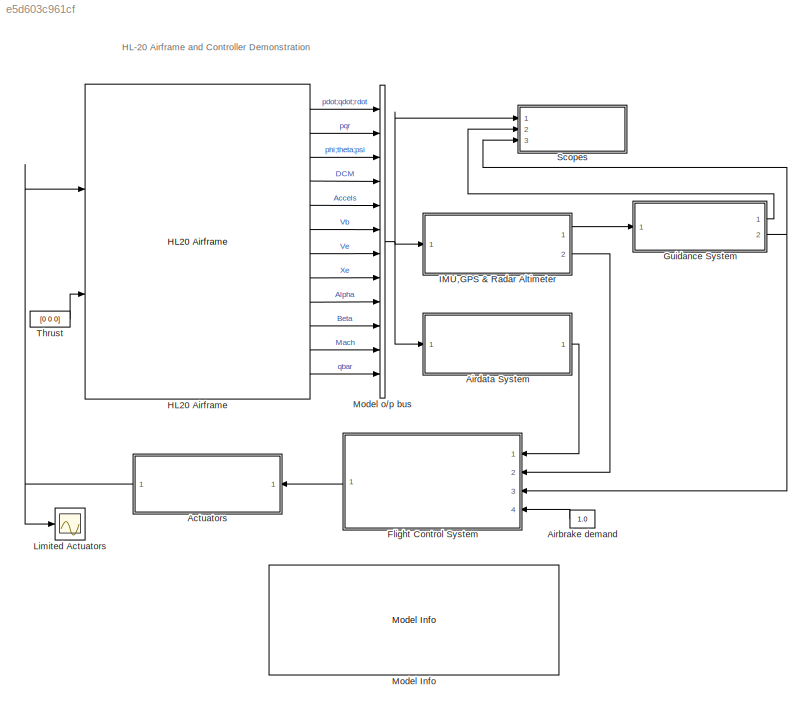
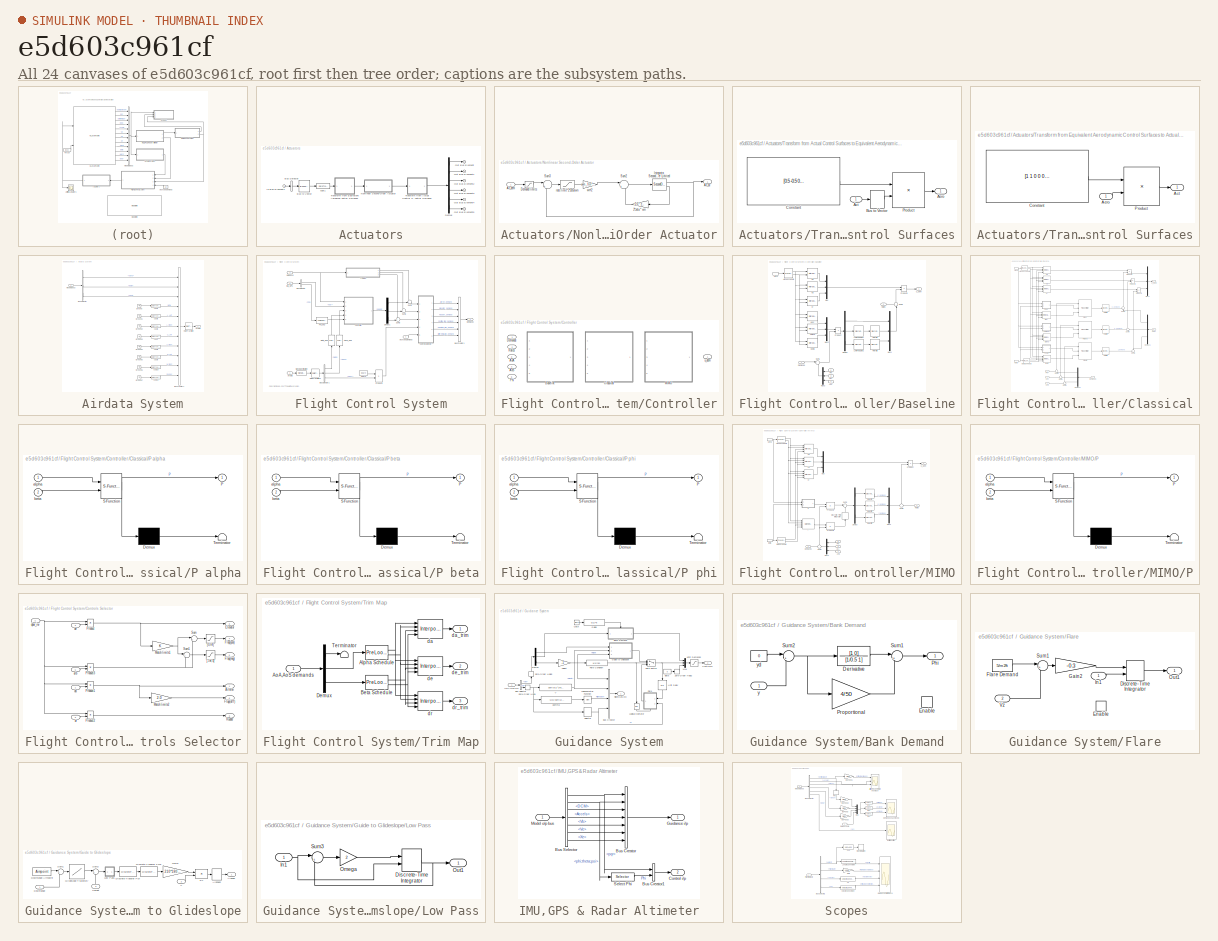
[diagram: thumbnail index - all 24 canvases of the model, root first then tree order]
MODEL slx_e5d603c961cf
KIND model
CONFIG AbsTol = auto
CONFIG EnableMultiTasking = on
CONFIG FixedStep = auto
CONFIG MaxStep = auto
CONFIG MinStep = auto
CONFIG PreLoadFcn = % Bus objects\nload csthl20_BusData\n\n% Controller configuration\nCTYPE=1;\n
CONFIG RelTol = 1e-3
CONFIG SampleTimeConstraint = Unconstrained
CONFIG SolverName = ode45
CONFIG StartTime = 0.0
CONFIG StopTime = 80
WORKSPACE source: mxarray member
WORKSPACE A_matrix = [-0.028840208852 -0.0156596305643 -0.0560912779756 -0.0863202941854 0.0209519994416 0.0112571762889 0 0 0 0 0 0 ... (11560 elements, 17x17x8x5)]
WORKSPACE Act2Aero = [0.5 0.5 0 0 0 0 -0.5 0.5 0 0 0 0 ... (42 elements, 6x7)]
WORKSPACE Aero2Act = [1 -1 0 0 0 0 0 1 1 0 0 0 ... (42 elements, 7x6)]
WORKSPACE Aimpoint = 0
WORKSPACE B_matrix = [0 0 0 0 0 0 4 0 0 0 0 0 ... (2040 elements, 17x3x8x5)]
WORKSPACE CX0 = [-0.038092388 -0.040074629 -0.041654124 -0.043173149 -0.044873204 -0.046895013 -0.049278524 -0.051962909 -0.054786564 -0.057487109 -0.059701388 -0.057487109 ... (861 elements, 21x41)]
WORKSPACE CXda = [0.0003742 1.961503e-05 -0.00027008192 -0.00050147477 -0.00068084192 -0.00081415625 -0.00090708512 -0.00096499037 -0.00099292832 -0.00099564977 -0.0009776 -0.00094291877 ... (41 elements, 41x1)]
WORKSPACE CXddf = [0.00027645 0.00032803699 0.00037408304 0.00041515629 0.00045179224 0.00048449375 0.00051373104 0.00053994169 0.00056353064 0.00058487019 0.0006043 0.00062212709 ... (41 elements, 41x1)]
WORKSPACE CXde = [0.00044324 0.000381836538 0.000331656768 0.000291344258 0.000259608768 0.00023522625 0.000217038848 0.000203954898 0.000194948928 0.000189061658 0.0001854 0.000183137058 ... (41 elements, 41x1)]
WORKSPACE CXdfn = [0.00044751 0.0004427177 0.0004388568 0.0004359273 0.0004339292 0.0004328625 0.0004327272 0.0004335233 0.0004352508 0.0004379097 0.0004415 0.0004460217 ... (41 elements, 41x1)]
WORKSPACE CXdfp = [-0.0001151958 -0.000116790098 -0.000118381312 -0.000119969442 -0.000121554488 -0.00012313645 -0.000124715328 -0.000126291122 -0.000127863832 -0.000129433458 -0.000131 -0.000132563458 ... (41 elements, 41x1)]
WORKSPACE CXdr = [0.00020501 3.1047221e-05 -0.000113321344 -0.000231591139 -0.000327061744 -0.000402836875 -0.000461824384 -0.000506736259 -0.000540088624 -0.000564201739 -0.0005812 -0.000593011939 ... (41 elements, 41x1)]
WORKSPACE CYbeta = -0.01242
WORKSPACE CYda = [0.003136571 0.0031983806691 0.0032503278976 0.0032928109331 0.0033262201776 0.0033509381875 0.0033673396736 0.0033757915011 0.0033766526896 0.0033702744131 0.003357 0.0033371649331 ... (41 elements, 41x1)]
WORKSPACE CYddf = [0.000435181 0.0003943016261 0.0003529648896 0.0003113622901 0.0002696754896 0.0002280763125 0.0001867267456 0.0001457789381 0.0001053752016 6.56480101e-05 2.672e-05 -1.12960299e-05 ... (41 elements, 41x1)]
WORKSPACE CYdr = [0.00252708114 0.00237481862595 0.00224430427494 0.00213447047171 0.00204424955574 0.00197257382125 0.00191837551718 0.00188058684723 0.00185813996982 0.00184996699811 0.001855 0.00187217099811 ... (41 elements, 41x1)]
WORKSPACE CZ0 = [0.4485479 0.452540024 0.457747164 0.464172584 0.471737564 0.4802814 0.489561404 0.499252904 0.508949244 0.518161784 0.5263199 0.518161784 ... (861 elements, 21x41)]
WORKSPACE CZda = [0.00078435 0.000747062965 0.00070172464 0.000650226765 0.00059433784 0.000535703125 0.00047584464 0.000416161165 0.00035792824 0.000302298165 0.0002503 0.000202839565 ... (41 elements, 41x1)]
WORKSPACE CZde = [-0.004135092 -0.004296890179 -0.00444395712 -0.004576811367 -0.004695912448 -0.004801660875 -0.004894398144 -0.004974406735 -0.005041910112 -0.005097072723 -0.00514 -0.005170738359 ... (41 elements, 41x1)]
WORKSPACE CZdfn = [-0.00344578 -0.003560437128 -0.003648409408 -0.003712592248 -0.003755747808 -0.003780505 -0.003789359488 -0.003784673688 -0.003768676768 -0.003743464648 -0.003711 -0.003673112248 ... (41 elements, 41x1)]
WORKSPACE CZdfp = [-0.003786031 -0.00378532664 -0.00378462256 -0.00378391876 -0.00378321524 -0.003782512 -0.00378180904 -0.00378110636 -0.00378040396 -0.00377970184 -0.003779 -0.00377829844 ... (41 elements, 41x1)]
WORKSPACE CZdr = [-0.0005037 -0.00036015136 -0.00026716816 -0.00021701736 -0.00020244976 -0.0002167 -0.00025348656 -0.00030701176 -0.00037196176 -0.00044350656 -0.0005173 -0.00058947976 ... (41 elements, 41x1)]
WORKSPACE C_matrix = [0 0 0 0 0 0 0 0 0 -58.994812472 0 0 ... (2040 elements, 3x17x8x5)]
WORKSPACE Clbeta = -0.00787
WORKSPACE Clda = [0.001932032 0.0020326391442 0.0021237120512 0.0022054993322 0.0022782453312 0.002342190125 0.0023975695232 0.0024446150682 0.0024835540352 0.0025146094322 0.002538 0.0025539402122 ... (41 elements, 41x1)]
WORKSPACE Clddf = [0.0007872 0.000807745996 0.000820040096 0.000825228156 0.000824391616 0.0008185475 0.000808648416 0.000795582556 0.000780173696 0.000763181196 0.0007453 0.000727160636 ... (41 elements, 41x1)]
WORKSPACE Cldr = [0.00131521 0.001082613421 0.000885702656 0.000721130461 0.000585704656 0.000476388125 0.000390298816 0.000324709741 0.000277048976 0.000244899661 0.000226 0.000218243261 ... (41 elements, 41x1)]
WORKSPACE Clp = [-0.498 -0.6 -0.398 -0.579 -0.425 -0.499 -0.649 -0.619 -0.81 -0.872 -2.41]
WORKSPACE Clr = [0.496 0.598 0.84 0.806 0.686 0.572 0.603 0.899 0.957 1.357 4.49]
WORKSPACE Cm0 = [0.0380742 0.038701881 0.039695376 0.040900701 0.042196056 0.043491825 0.044730576 0.045887061 0.046968216 0.048013161 0.0490932 0.048013161 ... (861 elements, 21x41)]
WORKSPACE Cmda = [-0.00172492 -0.001358222162 -0.001043014432 -0.000774578842 -0.000548407232 -0.00036020125 -0.000205872352 -8.1541802e-05 1.6459328e-05 9.1590158e-05 0.0001471 0.000186028358 ... (41 elements, 41x1)]
WORKSPACE Cmde = [-0.00155002 -0.001596102826 -0.001641310016 -0.001685002906 -0.001726581856 -0.00176548625 -0.001801194496 -0.001833224026 -0.001861131296 -0.001884511786 -0.001903 -0.001916269466 ... (41 elements, 41x1)]
WORKSPACE Cmdfn = [-0.00114421 -0.001160648097 -0.001169150592 -0.001170952777 -0.001167224592 -0.001159070625 -0.001147530112 -0.001133576937 -0.001118119632 -0.001102001377 -0.001086 -0.001070827977 ... (41 elements, 41x1)]
WORKSPACE Cmdfp = [-0.000989578757 -0.00098958144857 -0.00098958401408 -0.00098958645353 -0.00098958876692 -0.00098959095425 -0.00098959301552 -0.00098959495073 -0.00098959675988 -0.00098959844297 -0.0009896 -0.00098960143097 ... (41 elements, 41x1)]
WORKSPACE Cmdr = [0.000290283 0.0002382539513 0.0001902563968 0.0001463019633 0.0001063833968 7.04745625e-05 3.85304448e-05 1.04871473e-05 -1.37381072e-05 -3.42469767e-05 -5.116e-05 -6.46165967e-05 ... (41 elements, 41x1)]
WORKSPACE Cmq = [-0.203 -0.158 -0.116 -0.176 -0.176 -0.175 -0.174 -0.252 -0.299 -0.571 -0.8]
WORKSPACE Cn0 = [0 0 0 0 0 0 0 0 0 0.0046 0.0056 0.01 ... (36 elements, 9x4)]
WORKSPACE Cnda = [-0.00092498 -0.001272671988 -0.001576223168 -0.001838775908 -0.002063359968 -0.0022528925 -0.002410178048 -0.002537908548 -0.002638663328 -0.002714909108 -0.002769 -0.002803177508 ... (41 elements, 41x1)]
WORKSPACE Cnddf = [-0.000146484 -0.0001398019207 -0.0001321750752 -0.0001237254087 -0.0001145714752 -0.0001048284375 -9.46080672e-05 -8.40187447e-05 -7.31654592e-05 -6.21498087e-05 -5.107e-05 -4.00208487e-05 ... (41 elements, 41x1)]
WORKSPACE Cndr = [-0.0021525 -0.00197387964 -0.00182075584 -0.00169102464 -0.00158266224 -0.001493725 -0.00142234944 -0.00136675224 -0.00132523024 -0.00129616044 -0.001278 -0.00126928624 ... (41 elements, 41x1)]
WORKSPACE Cnp = [0.381 0.353 0.219 0.244 0.179 0.167 0.201 0.222 0.307 0.379 0.85]
WORKSPACE Cnr = [-0.794 -0.837 -0.921 -0.922 -0.867 -0.922 -0.946 -1.007 -1.09 -1.286 -2.041]
WORKSPACE Euler_0 = [0 -0.199448681609 0.174532925199]
WORKSPACE F_matrix = [5.97622599319 0.726116013193 -2.64604157338 40.7494939461 -11.661494324 -21.0342779763 -20.6745716213 19.9416021106 13.12545371 -926.002157715 187.969629212 231.434488107 ... (2040 elements, 3x17x8x5)]
WORKSPACE H_matrix = [-0.0157218860845 -0.283968320777 0.321370128412 0.271058535159 0.0185568065093 -0.00784369239396 -0.320886300542 1.82463546416 -0.0471251877299 0.142152392032 -0.0609086167769 0.505612659091 ... (2040 elements, 17x3x8x5)]
WORKSPACE Inertia = [12429.9503379 0 0 0 72478.3946274 0 0 0 72478.3946274]
WORKSPACE Ixx = 12429.9503379
WORKSPACE Iyy = 72478.3946274
WORKSPACE Izz = 72478.3946274
WORKSPACE Kalpha = [0.0423424456751 0.0568591289308 0.102067434202 0.0770570952411 0.0850957010804 0.0662889030912 0.0515945392978 0.0567349800611 0.0609882520612 0.0639334226074 0.102956303686 0.0735712249771 ... (40 elements, 8x5)]
WORKSPACE Kalpha_1 = [0.0675525766417 0.0670941520285 0.105277724217 0.0705938909254 0.0692391670282 0.0682506457138 0.0672739862702 0.0668102273189]
WORKSPACE Kbeta = [-0.0421966217034 -0.0316770241418 -0.0293493744968 -0.0256527675357 -0.0307095576987 -0.0325234533837 -0.0335699630482 -0.0320760010348 -0.034523712176 -0.0332114192463 -0.0353203051713 -0.0341700804254 ... (40 elements, 8x5)]
WORKSPACE Kbeta_1 = [-0.0493656538568 -0.0419788515038 -0.0374619432887 -0.0381850673629 -0.0395050518916 -0.0416555062349 -0.0442775778109 -0.0483706672557]
WORKSPACE Kg2lb = 2.20462
WORKSPACE Kg2slug = 0.0685218
WORKSPACE Ki33 = [0.05 0 0 0 0.05 0 0 0 -0.05 0.05 0 0 ... (360 elements, 3x3x8x5)]
WORKSPACE Kp = [58.994812472 52.4118047689 51.4724972494 52.6814724048 55.5352541837 58.9018334743 63.6260316602 72.5872875233 59.9420490209 52.6642968779 51.592012551 53.0773749012 ... (40 elements, 8x5)]
WORKSPACE Kp_1 = [60.2253428509 52.7939261692 51.6224369342 53.1835874806 55.9559014793 59.5393657693 64.8225348547 75.6927037235]
WORKSPACE Kphi = [0.0897851430865 0.0905292361524 0.0908849236023 0.0911263381707 0.0895187966623 0.0900454862025 0.0906744952369 0.0929073813074 0.0903130708487 0.090501875878 0.0906948768638 0.0909697583395 ... (40 elements, 8x5)]
WORKSPACE Kphi_1 = [0.0899736559878 0.0903144259517 0.0907381573489 0.0909707194509 0.0897040590713 0.0897346237436 0.0909239286068 0.092390635977]
WORKSPACE Kq = [-180.388522844 -183.274455652 -174.601566615 -173.806564517 -181.332040221 -198.869769941 -229.860472425 -279.151066798 -195.144174655 -181.815188811 -174.318203455 -173.650391198 ... (40 elements, 8x5)]
WORKSPACE Kq_1 = [-190.665384898 -180.322553126 -174.03272401 -173.493656781 -180.877109643 -197.917252796 -228.270830002 -278.51108854]
WORKSPACE Kr = [-713.893478208 -1002.12341186 -1153.7416491 -1153.7295441 -1077.83714501 -1007.5234901 -1017.22971433 -1059.1938939 -717.84572737 -1002.7104968 -1155.32550182 -1152.14420545 ... (40 elements, 8x5)]
WORKSPACE Kr_1 = [-714.366713062 -1002.72404317 -1151.4783324 -1152.96908365 -1070.59786805 -1009.08046077 -1000.48966647 -1058.93322007]
WORKSPACE L = 0.0065
WORKSPACE P0 = 101325
WORKSPACE PolyCoeff = [0.0005173 7.359e-05 -8.27e-07 -6.034e-07 2.016e-08 -5.116e-05 -1.516e-05 1.729e-06 -2.481e-08 -7.867e-10 0.0005812 1.41e-05 ... (30 elements, 5x6)]
WORKSPACE R = 287.26
WORKSPACE S_ref = 26.6120741048
WORKSPACE T0 = 288.16
WORKSPACE Tc: Simulink.Parameter (value not decoded)
WORKSPACE Tf = 0.0333333333333
WORKSPACE U_trim_matrix = [-23.7683817467 -4.33440943636 4.43733647183 -22.1955716586 4.52075664841 21.6532360323 -20.4783849922 6.34956743865 19.7065472455 -22.2662158495 5.88613316784 30.8883374276 ... (120 elements, 3x8x5)]
WORKSPACE V = 204
WORKSPACE Vmw = [202.669961421 0 23.256971809]
WORKSPACE Xglide = [0 50 100 150 200 250 300 350 400 450 500 550 ... (301 elements, 1x301)]
WORKSPACE a_matrix = [-0.028840208852 -0.0156596305643 -0.0560912779756 -0.0863202941854 0.0209519994416 0.0112571762889 23.9049039727 0 2.90446405277 0 -10.5841662935 0 ... (11560 elements, 17x17x8x5)]
WORKSPACE a_matrix_r = [-156.820455268 -2.6081545927 7.98280879857 -52.6889464944 -98.7536402844 -31.0538337205 -56.8560446475 -13.5355572892 20.9647022526 5.44178466439 10.8726065796 -74.0228373916 ... (4000 elements, 10x10x8x5)]
WORKSPACE a_vec = [-10 -5 0 5 10 15 20 25]
WORKSPACE al = [-10 -10 -10 -10 -10 -10 -10 -10 -10 -10 -10 -10 ... (861 elements, 861x1)]
WORKSPACE alpha0 = 0.114253174362
WORKSPACE alpha_0 = 0.114253174362
WORKSPACE alpha_vec_0 = [-10 -9 -8 -7 -6 -5 -4 -3 -2 -1 0 1 ... (41 elements, 1x41)]
WORKSPACE alpha_vec_Cn0 = [-10 -5 0 5 10 15 20 25 30]
WORKSPACE alpha_vec_damping = [0 5 10 12 14 16 18 20 22 25 30]
WORKSPACE b_matrix = [-0.0157218860845 -0.283968320777 0.321370128412 0.271058535159 0.0185568065093 -0.00784369239396 -0.320886300542 1.82463546416 -0.0471251877299 0.142152392032 -0.0609086167769 0.505612659091 ... (2040 elements, 17x3x8x5)]
WORKSPACE b_matrix_r = [16.1920898553 5.30458121646 -0.595159501787 0.926408673902 1.71445620697 0.355342126068 0.32457458722 0.685332204474 -1.16437558272 -0.29270115931 -11.0077968955 7.7054244731 ... (1200 elements, 10x3x8x5)]
WORKSPACE b_ref = 4.23367186452
WORKSPACE b_vec = [-10 -5 0 5 10]
WORKSPACE be = [-10 -9 -8 -7 -6 -5 -4 -3 -2 -1 0 1 ... (861 elements, 861x1)]
WORKSPACE beta_vec_0 = [-10 -9 -8 -7 -6 -5 -4 -3 -2 -1 0 1 ... (21 elements, 1x21)]
WORKSPACE beta_vec_Cn0 = [0 2 5 10]
WORKSPACE c_matrix = [-5.97622599319 -0.726116013193 2.64604157338 -40.7494939461 11.661494324 21.0342779763 20.6745716213 -19.9416021106 -13.12545371 926.002157715 -187.969629212 -231.434488107 ... (2040 elements, 3x17x8x5)]
WORKSPACE c_matrix_r = [15.2602338676 -5.43568873341 -5.10812577276 3.18529730179 7.88989001471 2.44811627957 -2.14984449181 2.50002941397 -6.57393218937 -0.387383577292 0.599324432144 0.592603066114 ... (1200 elements, 3x10x8x5)]
WORKSPACE d2r = 0.0174532925199
WORKSPACE d_matrix = [0 0 0 0 0 0 0 0 0 0 0 0 ... (360 elements, 3x3x8x5)]
WORKSPACE d_matrix_r = [0.0645179305383 -0.0277031296271 0.00912008654979 -0.026123256393 0.0358025045637 -0.00303736235544 0.00773298157175 0.0154534545894 0.0234258693594 0.0641966240952 -0.0199541298617 1.95187006231e-05 ... (360 elements, 3x3x8x5)]
WORKSPACE d_ref = 8.60755172456
WORKSPACE dbf_max = 60
WORKSPACE den_g = [1 -0.860465116279]
WORKSPACE dr_max = 60
WORKSPACE dwf_max = 30
WORKSPACE g = 9.81
WORKSPACE gam = 1.403
WORKSPACE gamma1 = 0.313701855971
WORKSPACE h_trop = 11000
WORKSPACE hglide = [0 2.62038896415 5.2407779283 7.86116689246 10.4815558566 13.1019448208 15.7223337849 18.3427227491 20.9631117132 23.5835006774 26.2038896415 28.8242786057 ... (301 elements, 1x301)]
WORKSPACE len_veh = 8.32408773363
WORKSPACE m2ft = 3.28084
WORKSPACE mass = 11738.9844962
WORKSPACE massBody = 10401.7925992
WORKSPACE massFuel = 1337.19189702
WORKSPACE max_lim = [30 30 60 60 0 0 60]
WORKSPACE min_lim = [-30 -30 0 0 -60 -60 -60]
WORKSPACE num_g = [0.930930232558 -0.929534883721]
WORKSPACE pm_0 = [0 0 0]
WORKSPACE qbar0 = 10722.8924586
WORKSPACE rho0 = 1.225
WORKSPACE temp = [0.0005037 0.00036015136 0.00026716816 0.00021701736 0.00020244976 0.0002167 0.00025348656 0.00030701176 0.00037196176 0.00044350656 0.0005173 0.00058947976 ... (246 elements, 41x6)]
WORKSPACE ts = 0.01
WORKSPACE wn_act = 44
WORKSPACE x_cg = 4.78635044684
WORKSPACE x_ref = 4.49500737616
WORKSPACE xme_0 = [-12071.9115088 -1000 -3047.99990246]
WORKSPACE z_act = 0.707106781187
BLOCK [SubSystem] Actuators
  Ports = [1, 1]
  RequestExecContextInheritance = off
BLOCK [BusSelector] Actuators/Bus Selector
  OutputAsBus = on
  OutputSignals = Aileron_demand,Elevator_demand,Rudder_demand,Positive_flap_demand,Negative_flap_demand,Differential_flap_demand
  Ports = [1, 1]
BLOCK [BusToVector] Actuators/Bus to Vector
BLOCK [Demux] Actuators/Demux
  DisplayOption = none
  Outputs = 6
  Ports = [1, 6]
BLOCK [Inport] Actuators/In Bus Element1
BLOCK [SubSystem] Actuators/Nonlinear Second-Order Actuator
  Ports = [1, 1]
  RequestExecContextInheritance = off
BLOCK [Gain] Actuators/Nonlinear Second-Order Actuator/2*zeta * wn
  Gain = 2.0 * z_fin* wn_fin
  OutDataTypeStr = Inherit: Same as input
  ParamDataTypeStr = Inherit: Same as input
  SaturateOnIntegerOverflow = on
BLOCK [Outport] Actuators/Nonlinear Second-Order Actuator/Ac_ac
  InitialOutput = 0
  VectorParamsAs1DForOutWhenUnconnected = off
BLOCK [Inport] Actuators/Nonlinear Second-Order Actuator/Ac_dem
BLOCK [Saturate] Actuators/Nonlinear Second-Order Actuator/Demand limits
  LowerLimit = fin_min
  UpperLimit = fin_max
BLOCK [SecondOrderIntegrator] Actuators/Nonlinear Second-Order Actuator/Integrator, Second-Order Limited
  ICDXDT = fin_act_vel
  ICX = fin_act_0
  IgnoreStateLimitsAndResetForLinearization = on
  LimitDXDT = on
  LimitX = on
  LowerLimitDXDT = -fin_maxrate
  LowerLimitX = fin_min
  Ports = [1, 2]
  UpperLimitDXDT = fin_maxrate
  UpperLimitX = fin_max
BLOCK [Sum] Actuators/Nonlinear Second-Order Actuator/Sum2
  InputSameDT = on
  Inputs = |+-
  OutDataTypeStr = Inherit: Same as first input
  Ports = [2, 1]
  SaturateOnIntegerOverflow = on
BLOCK [Sum] Actuators/Nonlinear Second-Order Actuator/Sum3
  InputSameDT = on
  Inputs = |+-
  OutDataTypeStr = Inherit: Same as first input
  Ports = [2, 1]
  SaturateOnIntegerOverflow = on
BLOCK [Saturate] Actuators/Nonlinear Second-Order Actuator/rate limit*2*zeta//wn
  LowerLimit = -fin_maxrate*2*z_fin/wn_fin
  UpperLimit = fin_maxrate*2*z_fin/wn_fin
BLOCK [Gain] Actuators/Nonlinear Second-Order Actuator/wn^2
  Gain = wn_fin* wn_fin
  OutDataTypeStr = Inherit: Same as input
  ParamDataTypeStr = Inherit: Same as input
  SaturateOnIntegerOverflow = on
BLOCK [Outport] Actuators/Out Bus Element
  VectorParamsAs1DForOutWhenUnconnected = off
BLOCK [Outport] Actuators/Out Bus Element1
  VectorParamsAs1DForOutWhenUnconnected = off
BLOCK [Outport] Actuators/Out Bus Element2
  VectorParamsAs1DForOutWhenUnconnected = off
BLOCK [Outport] Actuators/Out Bus Element3
  VectorParamsAs1DForOutWhenUnconnected = off
BLOCK [Outport] Actuators/Out Bus Element4
  VectorParamsAs1DForOutWhenUnconnected = off
BLOCK [Outport] Actuators/Out Bus Element5
  VectorParamsAs1DForOutWhenUnconnected = off
BLOCK [SubSystem] Actuators/Transform from Actual Control Surfaces to Equivalent Aerodynamic Control Surfaces
  Ports = [1, 1]
  RequestExecContextInheritance = off
BLOCK [Inport] Actuators/Transform from Actual Control Surfaces to Equivalent Aerodynamic Control Surfaces/Act
BLOCK [Outport] Actuators/Transform from Actual Control Surfaces to Equivalent Aerodynamic Control Surfaces/Aero
  VectorParamsAs1DForOutWhenUnconnected = off
BLOCK [BusToVector] Actuators/Transform from Actual Control Surfaces to Equivalent Aerodynamic Control Surfaces/Bus to Vector
BLOCK [Constant] Actuators/Transform from Actual Control Surfaces to Equivalent Aerodynamic Control Surfaces/Constant
  Value = [0.5 -0.5 0 0 0 0 0; 0.5 0.5 0 0 0 0 0; 0 0 0 0 0 0 1;0 0 0.5 0.5 0 0 0; 0 0 0 0  0.5  0.5 0;0 0 0.5 -0.5 0.5 -0.5 0]
BLOCK [Product] Actuators/Transform from Actual Control Surfaces to Equivalent Aerodynamic Control Surfaces/Product
  Multiplication = Matrix(*)
  Ports = [2, 1]
  RndMeth = Zero
BLOCK [SubSystem] Actuators/Transform from Equivalent Aerodynamic Control Surfaces to Actual Control Surfaces
  Ports = [1, 1]
  RequestExecContextInheritance = off
BLOCK [Outport] Actuators/Transform from Equivalent Aerodynamic Control Surfaces to Actual Control Surfaces/Act
  VectorParamsAs1DForOutWhenUnconnected = off
BLOCK [Inport] Actuators/Transform from Equivalent Aerodynamic Control Surfaces to Actual Control Surfaces/Aero
BLOCK [Constant] Actuators/Transform from Equivalent Aerodynamic Control Surfaces to Actual Control Surfaces/Constant
  Value = [1 1  0 0 0 0; -1 1 0 0 0 0; 0 0 0 1 0 0.5; 0 0 0 1 0 -0.5;0 0 0 0 1 0.5; 0 0 0 0 1 -0.5;0 0 1 0 0 0]
BLOCK [Product] Actuators/Transform from Equivalent Aerodynamic Control Surfaces to Actual Control Surfaces/Product
  Multiplication = Matrix(*)
  Ports = [2, 1]
  RndMeth = Zero
BLOCK [DataTypeConversion] Actuators/cast1
  NameLocation = top
  OutDataTypeStr = double
BLOCK [Constant] Airbrake demand
  Value = 1.0
BLOCK [SubSystem] Airdata System
  Ports = [1, 1]
  RequestExecContextInheritance = off
BLOCK [Outport] Airdata System/AirData
  OutDataTypeStr = Bus: AirDataBus
  VectorParamsAs1DForOutWhenUnconnected = off
BLOCK [BusCreator] Airdata System/Bus Creator1
  DisplayOption = bar
  InheritFromInputs = on
  Inputs = 11
  NonVirtualBus = on
  OutDataTypeStr = Bus: AirDataBus
  Ports = [11, 1]
BLOCK [BusSelector] Airdata System/Bus Selector
  OutputSignals = Alpha,Beta,qbar
  Ports = [1, 3]
BLOCK [Ground] Airdata System/Ground
BLOCK [Ground] Airdata System/Ground1
BLOCK [Ground] Airdata System/Ground2
BLOCK [Ground] Airdata System/Ground3
BLOCK [Ground] Airdata System/Ground4
BLOCK [Ground] Airdata System/Ground5
BLOCK [Ground] Airdata System/Ground6
BLOCK [Ground] Airdata System/Ground7
BLOCK [Inport] Airdata System/Model o//p bus
BLOCK [RateTransition] Airdata System/Rate Transition
  OutPortSampleTime = Tc
BLOCK [DataTypeConversion] Airdata System/cast10
  OutDataTypeStr = double
  RndMeth = Floor
  SaturateOnIntegerOverflow = off
BLOCK [DataTypeConversion] Airdata System/cast11
  OutDataTypeStr = double
  RndMeth = Floor
  SaturateOnIntegerOverflow = off
BLOCK [DataTypeConversion] Airdata System/cast4
  OutDataTypeStr = boolean
  RndMeth = Floor
  SaturateOnIntegerOverflow = off
BLOCK [DataTypeConversion] Airdata System/cast5
  OutDataTypeStr = double
  RndMeth = Floor
  SaturateOnIntegerOverflow = off
BLOCK [DataTypeConversion] Airdata System/cast6
  OutDataTypeStr = double
  RndMeth = Floor
  SaturateOnIntegerOverflow = off
BLOCK [DataTypeConversion] Airdata System/cast7
  OutDataTypeStr = double
  RndMeth = Floor
  SaturateOnIntegerOverflow = off
BLOCK [DataTypeConversion] Airdata System/cast8
  OutDataTypeStr = double
  RndMeth = Floor
  SaturateOnIntegerOverflow = off
BLOCK [DataTypeConversion] Airdata System/cast9
  OutDataTypeStr = double
  RndMeth = Floor
  SaturateOnIntegerOverflow = off
BLOCK [SubSystem] Flight Control System
  Ports = [4, 1]
  RequestExecContextInheritance = off
BLOCK [Inport] Flight Control System/Airbrake Demand
  Port = 4
BLOCK [Inport] Flight Control System/Airdata
  OutDataTypeStr = Bus: AirDataBus
BLOCK [Reference] Flight Control System/Alpha_deg  REF=aerolibconvert2/Angle Conversion
  NameLocation = right
  Ports = [1, 1]
  SourceBlock = aerolibconvert2/Angle Conversion
  SourceProductBaseCode = AE
  SourceType = Angle Conversion
BLOCK [Reference] Flight Control System/Beta_deg  REF=aerolibconvert2/Angle Conversion
  NameLocation = left
  Ports = [1, 1]
  SourceBlock = aerolibconvert2/Angle Conversion
  SourceProductBaseCode = AE
  SourceType = Angle Conversion
BLOCK [BusCreator] Flight Control System/Bus Creator1
  DisplayOption = bar
  InheritFromInputs = on
  Inputs = 6
  OutDataTypeStr = Bus: FCSCmdBus
  Ports = [6, 1]
BLOCK [BusSelector] Flight Control System/Bus Selector
  OutputSignals = pqr,Phi
  Ports = [1, 2]
BLOCK [BusSelector] Flight Control System/Bus Selector1
  OutputSignals = Beta,Alpha,qbar
  Ports = [1, 3]
BLOCK [SubSystem] Flight Control System/Controller
  Ports = [5, 1]
  RequestExecContextInheritance = off
  Variant = on
  VariantControl = Variant1
BLOCK [Outport] Flight Control System/Controller/ u_dem
  VectorParamsAs1DForOutWhenUnconnected = off
BLOCK [Inport] Flight Control System/Controller/AoA 
  Port = 3
BLOCK [Inport] Flight Control System/Controller/AoS 
  Port = 4
BLOCK [SubSystem] Flight Control System/Controller/Baseline
  Ports = [5, 1]
  RequestExecContextInheritance = off
  VariantControl = CTYPE == 1
BLOCK [InportShadow] Flight Control System/Controller/Baseline/Alpha
  Port = 3
  PortDimensions = 1
BLOCK [PreLookup] Flight Control System/Controller/Baseline/Alpha Schedule
  BeginIndexSearchUsingPreviousIndexResult = on
  BreakpointsData = a_vec
  ExtrapMethod = Linear
  InputPortMap = u0
  Ports = [1, 2]
BLOCK [Inport] Flight Control System/Controller/Baseline/AoA
  Port = 3
  PortDimensions = 1
BLOCK [Inport] Flight Control System/Controller/Baseline/AoS
  Port = 4
  PortDimensions = 1
BLOCK [Inport] Flight Control System/Controller/Baseline/Demands
  PortDimensions = 3
BLOCK [Demux] Flight Control System/Controller/Baseline/Demux
  DisplayOption = none
  Outputs = 3
  Ports = [1, 3]
BLOCK [Interpolation_n-D] Flight Control System/Controller/Baseline/Kalpha
  InputPortMap = u0,u1
  NumberOfTableDimensions = 1
  Ports = [2, 1]
  RemoveProtectionIndex = on
  Table = Kalpha_1
BLOCK [Interpolation_n-D] Flight Control System/Controller/Baseline/Kbeta
  InputPortMap = u0,u1
  NumberOfTableDimensions = 1
  Ports = [2, 1]
  RemoveProtectionIndex = on
  Table = Kbeta_1
BLOCK [Interpolation_n-D] Flight Control System/Controller/Baseline/Kp
  InputPortMap = u0,u1
  NumberOfTableDimensions = 1
  Ports = [2, 1]
  RemoveProtectionIndex = on
  Table = Kp_1
BLOCK [Interpolation_n-D] Flight Control System/Controller/Baseline/Kphi
  InputPortMap = u0,u1
  NumberOfTableDimensions = 1
  Ports = [2, 1]
  RemoveProtectionIndex = on
  Table = Kphi_1
BLOCK [Interpolation_n-D] Flight Control System/Controller/Baseline/Kq
  InputPortMap = u0,u1
  NumberOfTableDimensions = 1
  Ports = [2, 1]
  RemoveProtectionIndex = on
  Table = Kq_1
BLOCK [Interpolation_n-D] Flight Control System/Controller/Baseline/Kr
  InputPortMap = u0,u1
  NumberOfTableDimensions = 1
  Ports = [2, 1]
  RemoveProtectionIndex = on
  Table = Kr_1
BLOCK [Reference] Flight Control System/Controller/Baseline/Low freq gain1  REF=discretizing/Discretized  (lib defined in mdl_5048aa1cd587)
Transfer Fcn
  Ports = [1, 1]
  SourceBlock = discretizing/Discretized\nTransfer Fcn
  SourceProductBaseCode = SL
  SourceType = DiscretizedTransferFcn
BLOCK [Reference] Flight Control System/Controller/Baseline/Low freq gain2  REF=discretizing/Discretized  (lib defined in mdl_5048aa1cd587)
Transfer Fcn
  Ports = [1, 1]
  SourceBlock = discretizing/Discretized\nTransfer Fcn
  SourceProductBaseCode = SL
  SourceType = DiscretizedTransferFcn
BLOCK [Mux] Flight Control System/Controller/Baseline/Mux
  DisplayOption = bar
  Inputs = [1,1,1]
  Ports = [3, 1]
BLOCK [Mux] Flight Control System/Controller/Baseline/Mux1
  DisplayOption = bar
  Inputs = [1,1,1]
  Ports = [3, 1]
BLOCK [Mux] Flight Control System/Controller/Baseline/Mux2
  DisplayOption = bar
  Inputs = 3
  Ports = [3, 1]
BLOCK [Mux] Flight Control System/Controller/Baseline/Mux3
  DisplayOption = bar
  Inputs = [1,1,1]
  NameLocation = top
  Ports = [3, 1]
BLOCK [Inport] Flight Control System/Controller/Baseline/Phi
  Port = 5
  PortDimensions = 1
BLOCK [Product] Flight Control System/Controller/Baseline/Product
  InputSameDT = on
  OutDataTypeStr = Inherit: Same as first input
  Ports = [2, 1]
  SaturateOnIntegerOverflow = on
BLOCK [Product] Flight Control System/Controller/Baseline/Product1
  InputSameDT = on
  OutDataTypeStr = Inherit: Same as first input
  Ports = [2, 1]
  SaturateOnIntegerOverflow = on
BLOCK [Inport] Flight Control System/Controller/Baseline/Rates
  Port = 2
  PortDimensions = 3
BLOCK [Reference] Flight Control System/Controller/Baseline/Roll-off1  REF=discretizing/Discretized  (lib defined in mdl_5048aa1cd587)
Transfer Fcn
  Ports = [1, 1]
  SourceBlock = discretizing/Discretized\nTransfer Fcn
  SourceProductBaseCode = SL
  SourceType = DiscretizedTransferFcn
BLOCK [Reference] Flight Control System/Controller/Baseline/Roll-off2  REF=discretizing/Discretized  (lib defined in mdl_5048aa1cd587)
Transfer Fcn
  Ports = [1, 1]
  SourceBlock = discretizing/Discretized\nTransfer Fcn
  SourceProductBaseCode = SL
  SourceType = DiscretizedTransferFcn
BLOCK [Sum] Flight Control System/Controller/Baseline/Sum1
  InputSameDT = on
  Inputs = |+-
  OutDataTypeStr = Inherit: Same as first input
  Ports = [2, 1]
  SaturateOnIntegerOverflow = on
BLOCK [Sum] Flight Control System/Controller/Baseline/Sum2
  InputSameDT = on
  Inputs = -+|
  NameLocation = right
  OutDataTypeStr = Inherit: Same as first input
  Ports = [2, 1]
  SaturateOnIntegerOverflow = on
BLOCK [Outport] Flight Control System/Controller/Baseline/u_dem
  InitialOutput = [0 0 0]
  VectorParamsAs1DForOutWhenUnconnected = off
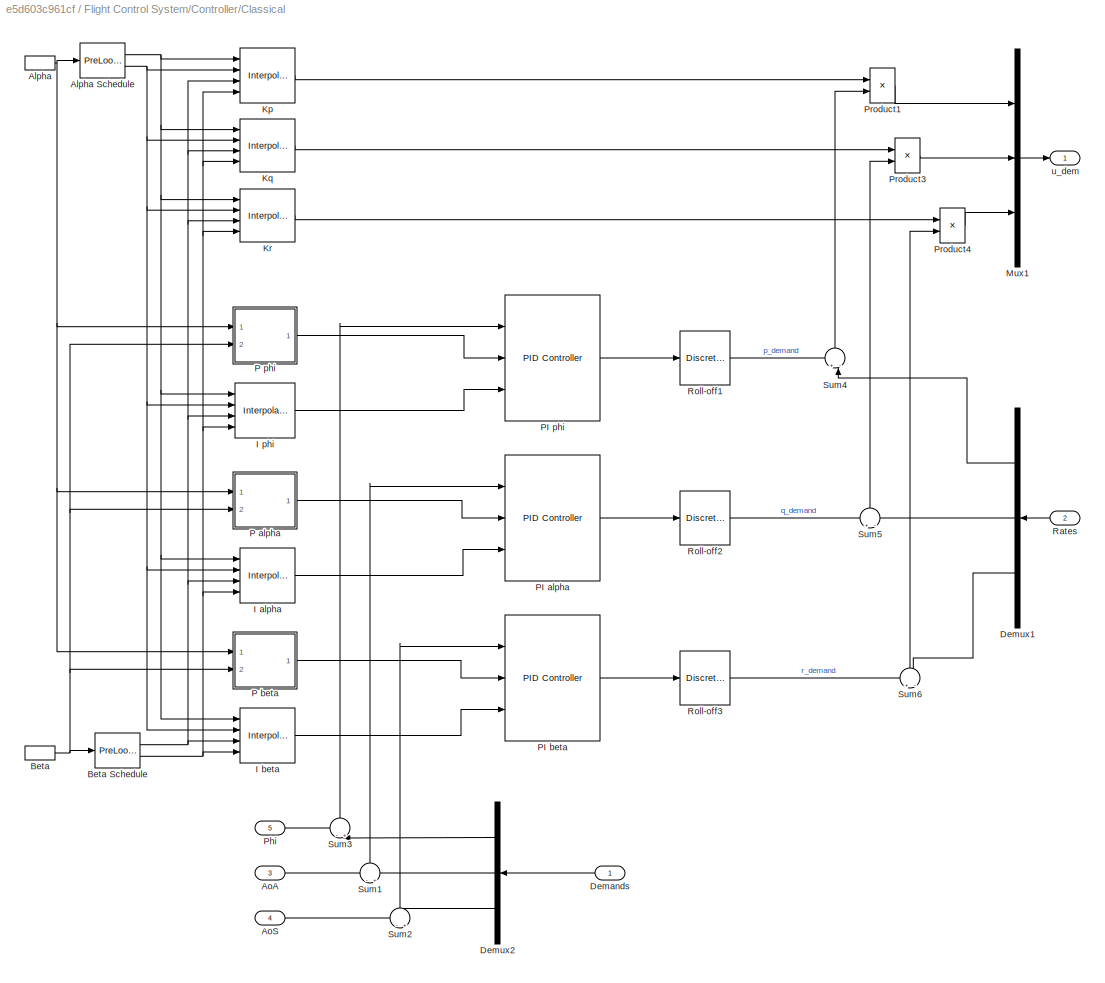
BLOCK [SubSystem] Flight Control System/Controller/Classical
  Ports = [5, 1]
  RequestExecContextInheritance = off
  VariantControl = CTYPE == 2
BLOCK [InportShadow] Flight Control System/Controller/Classical/Alpha
  Port = 3
  PortDimensions = 1
BLOCK [PreLookup] Flight Control System/Controller/Classical/Alpha Schedule
  BeginIndexSearchUsingPreviousIndexResult = on
  BreakpointsData = a_vec
  ExtrapMethod = Linear
  InputPortMap = u0
  Ports = [1, 2]
BLOCK [Inport] Flight Control System/Controller/Classical/AoA
  Port = 3
  PortDimensions = 1
BLOCK [Inport] Flight Control System/Controller/Classical/AoS
  Port = 4
  PortDimensions = 1
BLOCK [InportShadow] Flight Control System/Controller/Classical/Beta
  Port = 4
  PortDimensions = 1
BLOCK [PreLookup] Flight Control System/Controller/Classical/Beta Schedule
  BeginIndexSearchUsingPreviousIndexResult = on
  BreakpointsData = b_vec
  ExtrapMethod = Linear
  InputPortMap = u0
  Ports = [1, 2]
BLOCK [Inport] Flight Control System/Controller/Classical/Demands
  PortDimensions = 3
BLOCK [Demux] Flight Control System/Controller/Classical/Demux1
  DisplayOption = none
  Outputs = 3
  Ports = [1, 3]
BLOCK [Demux] Flight Control System/Controller/Classical/Demux2
  DisplayOption = none
  Outputs = 3
  Ports = [1, 3]
BLOCK [Interpolation_n-D] Flight Control System/Controller/Classical/I alpha
  InputPortMap = u0,u1,u2,u3
  Ports = [4, 1]
  RemoveProtectionIndex = on
  Table = Kalpha
BLOCK [Interpolation_n-D] Flight Control System/Controller/Classical/I beta
  InputPortMap = u0,u1,u2,u3
  Ports = [4, 1]
  RemoveProtectionIndex = on
  Table = Kbeta
BLOCK [Interpolation_n-D] Flight Control System/Controller/Classical/I phi
  InputPortMap = u0,u1,u2,u3
  Ports = [4, 1]
  RemoveProtectionIndex = on
  Table = Kphi
BLOCK [Interpolation_n-D] Flight Control System/Controller/Classical/Kp
  InputPortMap = u0,u1,u2,u3
  Ports = [4, 1]
  RemoveProtectionIndex = on
  Table = Kp
BLOCK [Interpolation_n-D] Flight Control System/Controller/Classical/Kq
  InputPortMap = u0,u1,u2,u3
  Ports = [4, 1]
  RemoveProtectionIndex = on
  Table = Kq
BLOCK [Interpolation_n-D] Flight Control System/Controller/Classical/Kr
  InputPortMap = u0,u1,u2,u3
  Ports = [4, 1]
  RemoveProtectionIndex = on
  Table = Kr
BLOCK [Mux] Flight Control System/Controller/Classical/Mux1
  DisplayOption = bar
  Inputs = 3
  Ports = [3, 1]
BLOCK [SubSystem] Flight Control System/Controller/Classical/P alpha
  ErrorFcn = Stateflow.Translate.translate
  PermitHierarchicalResolution = ExplicitOnly
  Ports = [2, 1]
  RequestExecContextInheritance = off
  SFBlockType = MATLAB Function
  TreatAsAtomicUnit = on
BLOCK [Demux] Flight Control System/Controller/Classical/P alpha/ Demux 
  Outputs = 1
  Ports = [1, 1]
BLOCK [S-Function] Flight Control System/Controller/Classical/P alpha/ SFunction 
  EnableBusSupport = off
  FunctionName = sf_sfun
  PortCounts = [2 2]
  Ports = [2, 2]
  SFcnIsStateOwnerBlock = off
  SFunctionDeploymentMode = off
  Tag = Stateflow S-Function 3
BLOCK [Terminator] Flight Control System/Controller/Classical/P alpha/ Terminator 
BLOCK [Outport] Flight Control System/Controller/Classical/P alpha/P
  VectorParamsAs1DForOutWhenUnconnected = off
BLOCK [Inport] Flight Control System/Controller/Classical/P alpha/alpha
BLOCK [Inport] Flight Control System/Controller/Classical/P alpha/beta
  Port = 2
BLOCK [SubSystem] Flight Control System/Controller/Classical/P beta
  ErrorFcn = Stateflow.Translate.translate
  PermitHierarchicalResolution = ExplicitOnly
  Ports = [2, 1]
  RequestExecContextInheritance = off
  SFBlockType = MATLAB Function
  TreatAsAtomicUnit = on
BLOCK [Demux] Flight Control System/Controller/Classical/P beta/ Demux 
  Outputs = 1
  Ports = [1, 1]
BLOCK [S-Function] Flight Control System/Controller/Classical/P beta/ SFunction 
  EnableBusSupport = off
  FunctionName = sf_sfun
  PortCounts = [2 2]
  Ports = [2, 2]
  SFcnIsStateOwnerBlock = off
  SFunctionDeploymentMode = off
  Tag = Stateflow S-Function 4
BLOCK [Terminator] Flight Control System/Controller/Classical/P beta/ Terminator 
BLOCK [Outport] Flight Control System/Controller/Classical/P beta/P
  VectorParamsAs1DForOutWhenUnconnected = off
BLOCK [Inport] Flight Control System/Controller/Classical/P beta/alpha
BLOCK [Inport] Flight Control System/Controller/Classical/P beta/beta
  Port = 2
BLOCK [SubSystem] Flight Control System/Controller/Classical/P phi
  ErrorFcn = Stateflow.Translate.translate
  PermitHierarchicalResolution = ExplicitOnly
  Ports = [2, 1]
  RequestExecContextInheritance = off
  SFBlockType = MATLAB Function
  TreatAsAtomicUnit = on
BLOCK [Demux] Flight Control System/Controller/Classical/P phi/ Demux 
  Outputs = 1
  Ports = [1, 1]
BLOCK [S-Function] Flight Control System/Controller/Classical/P phi/ SFunction 
  EnableBusSupport = off
  FunctionName = sf_sfun
  PortCounts = [2 2]
  Ports = [2, 2]
  SFcnIsStateOwnerBlock = off
  SFunctionDeploymentMode = off
  Tag = Stateflow S-Function 2
BLOCK [Terminator] Flight Control System/Controller/Classical/P phi/ Terminator 
BLOCK [Outport] Flight Control System/Controller/Classical/P phi/P
  VectorParamsAs1DForOutWhenUnconnected = off
BLOCK [Inport] Flight Control System/Controller/Classical/P phi/alpha
BLOCK [Inport] Flight Control System/Controller/Classical/P phi/beta
  Port = 2
BLOCK [Reference] Flight Control System/Controller/Classical/PI alpha  REF=slpidlib/PID Controller
  Ports = [3, 1]
  SourceBlock = slpidlib/PID Controller
  SourceProductBaseCode = SL
  SourceType = PID 1dof
BLOCK [Reference] Flight Control System/Controller/Classical/PI beta  REF=slpidlib/PID Controller
  Ports = [3, 1]
  SourceBlock = slpidlib/PID Controller
  SourceProductBaseCode = SL
  SourceType = PID 1dof
BLOCK [Reference] Flight Control System/Controller/Classical/PI phi  REF=slpidlib/PID Controller
  Ports = [3, 1]
  SourceBlock = slpidlib/PID Controller
  SourceProductBaseCode = SL
  SourceType = PID 1dof
BLOCK [Inport] Flight Control System/Controller/Classical/Phi
  Port = 5
  PortDimensions = 1
BLOCK [Product] Flight Control System/Controller/Classical/Product1
  InputSameDT = on
  OutDataTypeStr = Inherit: Same as first input
  Ports = [2, 1]
  SaturateOnIntegerOverflow = on
BLOCK [Product] Flight Control System/Controller/Classical/Product3
  InputSameDT = on
  OutDataTypeStr = Inherit: Same as first input
  Ports = [2, 1]
  SaturateOnIntegerOverflow = on
BLOCK [Product] Flight Control System/Controller/Classical/Product4
  InputSameDT = on
  OutDataTypeStr = Inherit: Same as first input
  Ports = [2, 1]
  SaturateOnIntegerOverflow = on
BLOCK [Inport] Flight Control System/Controller/Classical/Rates
  Port = 2
  PortDimensions = 3
BLOCK [Reference] Flight Control System/Controller/Classical/Roll-off1  REF=discretizing/Discretized  (lib defined in mdl_5048aa1cd587)
Transfer Fcn
  Ports = [1, 1]
  SourceBlock = discretizing/Discretized\nTransfer Fcn
  SourceProductBaseCode = SL
  SourceType = DiscretizedTransferFcn
BLOCK [Reference] Flight Control System/Controller/Classical/Roll-off2  REF=discretizing/Discretized  (lib defined in mdl_5048aa1cd587)
Transfer Fcn
  Ports = [1, 1]
  SourceBlock = discretizing/Discretized\nTransfer Fcn
  SourceProductBaseCode = SL
  SourceType = DiscretizedTransferFcn
BLOCK [Reference] Flight Control System/Controller/Classical/Roll-off3  REF=discretizing/Discretized  (lib defined in mdl_5048aa1cd587)
Transfer Fcn
  Ports = [1, 1]
  SourceBlock = discretizing/Discretized\nTransfer Fcn
  SourceProductBaseCode = SL
  SourceType = DiscretizedTransferFcn
BLOCK [Sum] Flight Control System/Controller/Classical/Sum1
  InputSameDT = on
  Inputs = -|+
  NameLocation = right
  OutDataTypeStr = Inherit: Same as first input
  Ports = [2, 1]
  SaturateOnIntegerOverflow = on
BLOCK [Sum] Flight Control System/Controller/Classical/Sum2
  InputSameDT = on
  Inputs = -|+
  NameLocation = right
  OutDataTypeStr = Inherit: Same as first input
  Ports = [2, 1]
  SaturateOnIntegerOverflow = on
BLOCK [Sum] Flight Control System/Controller/Classical/Sum3
  InputSameDT = on
  Inputs = -|+
  NameLocation = right
  OutDataTypeStr = Inherit: Same as first input
  Ports = [2, 1]
  SaturateOnIntegerOverflow = on
BLOCK [Sum] Flight Control System/Controller/Classical/Sum4
  InputSameDT = on
  Inputs = +|-
  NameLocation = right
  OutDataTypeStr = Inherit: Same as first input
  Ports = [2, 1]
  SaturateOnIntegerOverflow = on
BLOCK [Sum] Flight Control System/Controller/Classical/Sum5
  InputSameDT = on
  Inputs = +|-
  NameLocation = right
  OutDataTypeStr = Inherit: Same as first input
  Ports = [2, 1]
  SaturateOnIntegerOverflow = on
BLOCK [Sum] Flight Control System/Controller/Classical/Sum6
  InputSameDT = on
  Inputs = +|-
  NameLocation = right
  OutDataTypeStr = Inherit: Same as first input
  Ports = [2, 1]
  SaturateOnIntegerOverflow = on
BLOCK [Outport] Flight Control System/Controller/Classical/u_dem
  InitialOutput = [0 0 0]
  VectorParamsAs1DForOutWhenUnconnected = off
BLOCK [Inport] Flight Control System/Controller/Demands 
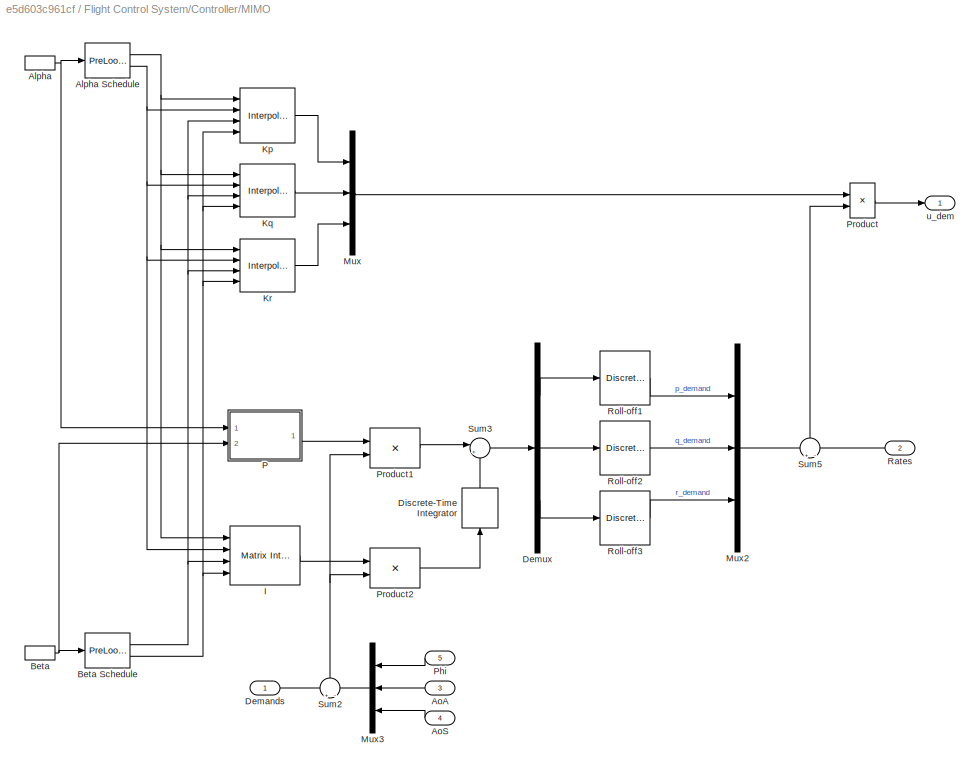
BLOCK [SubSystem] Flight Control System/Controller/MIMO
  Ports = [5, 1]
  RequestExecContextInheritance = off
  VariantControl = CTYPE == 3
BLOCK [InportShadow] Flight Control System/Controller/MIMO/Alpha
  Port = 3
  PortDimensions = 1
BLOCK [PreLookup] Flight Control System/Controller/MIMO/Alpha Schedule
  BeginIndexSearchUsingPreviousIndexResult = on
  BreakpointsData = a_vec
  ExtrapMethod = Linear
  InputPortMap = u0
  Ports = [1, 2]
BLOCK [Inport] Flight Control System/Controller/MIMO/AoA
  Port = 3
  PortDimensions = 1
BLOCK [Inport] Flight Control System/Controller/MIMO/AoS
  Port = 4
  PortDimensions = 1
BLOCK [InportShadow] Flight Control System/Controller/MIMO/Beta
  Port = 4
  PortDimensions = 1
BLOCK [PreLookup] Flight Control System/Controller/MIMO/Beta Schedule
  BeginIndexSearchUsingPreviousIndexResult = on
  BreakpointsData = b_vec
  ExtrapMethod = Linear
  InputPortMap = u0
  Ports = [1, 2]
BLOCK [Inport] Flight Control System/Controller/MIMO/Demands
  PortDimensions = 3
BLOCK [Demux] Flight Control System/Controller/MIMO/Demux
  DisplayOption = none
  Outputs = 3
  Ports = [1, 3]
BLOCK [DiscreteIntegrator] Flight Control System/Controller/MIMO/Discrete-Time Integrator
  ICPrevOutput = DiscIntNeverNeededParam
  ICPrevScaledInput = DiscIntNeverNeededParam
  InitialConditionSetting = Auto
  NameLocation = left
  Ports = [1, 1]
  SampleTime = Tc
BLOCK [Reference] Flight Control System/Controller/MIMO/I  REF=simulink_extras/Additional
Lookup Tables/Matrix Interpolation
  Ports = [4, 1]
  SourceBlock = simulink_extras/Additional\nLookup Tables/Matrix Interpolation
  SourceProductBaseCode = SL
  SourceType = MatrixInterpolation
BLOCK [Interpolation_n-D] Flight Control System/Controller/MIMO/Kp
  InputPortMap = u0,u1,u2,u3
  Ports = [4, 1]
  RemoveProtectionIndex = on
  Table = Kp
BLOCK [Interpolation_n-D] Flight Control System/Controller/MIMO/Kq
  InputPortMap = u0,u1,u2,u3
  Ports = [4, 1]
  RemoveProtectionIndex = on
  Table = Kq
BLOCK [Interpolation_n-D] Flight Control System/Controller/MIMO/Kr
  InputPortMap = u0,u1,u2,u3
  Ports = [4, 1]
  RemoveProtectionIndex = on
  Table = Kr
BLOCK [Mux] Flight Control System/Controller/MIMO/Mux
  DisplayOption = bar
  Inputs = [1,1,1]
  Ports = [3, 1]
BLOCK [Mux] Flight Control System/Controller/MIMO/Mux2
  DisplayOption = bar
  Inputs = [1,1,1]
  Ports = [3, 1]
BLOCK [Mux] Flight Control System/Controller/MIMO/Mux3
  DisplayOption = bar
  Inputs = [1,1,1]
  NameLocation = top
  Ports = [3, 1]
BLOCK [SubSystem] Flight Control System/Controller/MIMO/P
  ErrorFcn = Stateflow.Translate.translate
  PermitHierarchicalResolution = ExplicitOnly
  Ports = [2, 1]
  RequestExecContextInheritance = off
  SFBlockType = MATLAB Function
  TreatAsAtomicUnit = on
BLOCK [Demux] Flight Control System/Controller/MIMO/P/ Demux 
  Outputs = 1
  Ports = [1, 1]
BLOCK [S-Function] Flight Control System/Controller/MIMO/P/ SFunction 
  EnableBusSupport = off
  FunctionName = sf_sfun
  PortCounts = [2 2]
  Ports = [2, 2]
  SFcnIsStateOwnerBlock = off
  SFunctionDeploymentMode = off
  Tag = Stateflow S-Function 1
BLOCK [Terminator] Flight Control System/Controller/MIMO/P/ Terminator 
BLOCK [Outport] Flight Control System/Controller/MIMO/P/P
  VectorParamsAs1DForOutWhenUnconnected = off
BLOCK [Inport] Flight Control System/Controller/MIMO/P/alpha
BLOCK [Inport] Flight Control System/Controller/MIMO/P/beta
  Port = 2
BLOCK [Inport] Flight Control System/Controller/MIMO/Phi
  Port = 5
  PortDimensions = 1
BLOCK [Product] Flight Control System/Controller/MIMO/Product
  InputSameDT = on
  OutDataTypeStr = Inherit: Same as first input
  Ports = [2, 1]
  SaturateOnIntegerOverflow = on
BLOCK [Product] Flight Control System/Controller/MIMO/Product1
  InputSameDT = on
  Multiplication = Matrix(*)
  OutDataTypeStr = Inherit: Same as first input
  Ports = [2, 1]
  SaturateOnIntegerOverflow = on
BLOCK [Product] Flight Control System/Controller/MIMO/Product2
  InputSameDT = on
  Multiplication = Matrix(*)
  OutDataTypeStr = Inherit: Same as first input
  Ports = [2, 1]
  SaturateOnIntegerOverflow = on
BLOCK [Inport] Flight Control System/Controller/MIMO/Rates
  Port = 2
  PortDimensions = 3
BLOCK [Reference] Flight Control System/Controller/MIMO/Roll-off1  REF=discretizing/Discretized  (lib defined in mdl_5048aa1cd587)
Transfer Fcn
  Ports = [1, 1]
  SourceBlock = discretizing/Discretized\nTransfer Fcn
  SourceProductBaseCode = SL
  SourceType = DiscretizedTransferFcn
BLOCK [Reference] Flight Control System/Controller/MIMO/Roll-off2  REF=discretizing/Discretized  (lib defined in mdl_5048aa1cd587)
Transfer Fcn
  Ports = [1, 1]
  SourceBlock = discretizing/Discretized\nTransfer Fcn
  SourceProductBaseCode = SL
  SourceType = DiscretizedTransferFcn
BLOCK [Reference] Flight Control System/Controller/MIMO/Roll-off3  REF=discretizing/Discretized  (lib defined in mdl_5048aa1cd587)
Transfer Fcn
  Ports = [1, 1]
  SourceBlock = discretizing/Discretized\nTransfer Fcn
  SourceProductBaseCode = SL
  SourceType = DiscretizedTransferFcn
BLOCK [Sum] Flight Control System/Controller/MIMO/Sum2
  InputSameDT = on
  Inputs = +|-
  NameLocation = right
  OutDataTypeStr = Inherit: Same as first input
  Ports = [2, 1]
  SaturateOnIntegerOverflow = on
BLOCK [Sum] Flight Control System/Controller/MIMO/Sum3
  InputSameDT = on
  Inputs = |++
  OutDataTypeStr = Inherit: Same as first input
  Ports = [2, 1]
  SaturateOnIntegerOverflow = on
BLOCK [Sum] Flight Control System/Controller/MIMO/Sum5
  InputSameDT = on
  Inputs = +|-
  NameLocation = right
  OutDataTypeStr = Inherit: Same as first input
  Ports = [2, 1]
  SaturateOnIntegerOverflow = on
BLOCK [Outport] Flight Control System/Controller/MIMO/u_dem
  InitialOutput = [0 0 0]
  VectorParamsAs1DForOutWhenUnconnected = off
BLOCK [Inport] Flight Control System/Controller/Phi 
  Port = 5
BLOCK [Inport] Flight Control System/Controller/Rates 
  Port = 2
BLOCK [SubSystem] Flight Control System/Controls Selector
  Ports = [5, 6]
  RequestExecContextInheritance = off
BLOCK [Outport] Flight Control System/Controls Selector/Aileron
  VectorParamsAs1DForOutWhenUnconnected = off
BLOCK [Outport] Flight Control System/Controls Selector/Elevator
  Port = 2
  VectorParamsAs1DForOutWhenUnconnected = off
BLOCK [Outport] Flight Control System/Controls Selector/Flap(diff)
  Port = 6
  VectorParamsAs1DForOutWhenUnconnected = off
BLOCK [Outport] Flight Control System/Controls Selector/Flap(neg)
  Port = 5
  VectorParamsAs1DForOutWhenUnconnected = off
BLOCK [Outport] Flight Control System/Controls Selector/Flap(pos)
  Port = 4
  VectorParamsAs1DForOutWhenUnconnected = off
BLOCK [Gain] Flight Control System/Controls Selector/Match limits1
  OutDataTypeStr = Inherit: Same as input
  ParamDataTypeStr = Inherit: Same as input
  SaturateOnIntegerOverflow = on
BLOCK [Gain] Flight Control System/Controls Selector/Match limits2
  Gain = 2.0
  OutDataTypeStr = Inherit: Same as input
  ParamDataTypeStr = Inherit: Same as input
  SaturateOnIntegerOverflow = on
BLOCK [Product] Flight Control System/Controls Selector/Product
  InputSameDT = on
  OutDataTypeStr = Inherit: Same as first input
  Ports = [2, 1]
  SaturateOnIntegerOverflow = on
BLOCK [Product] Flight Control System/Controls Selector/Product1
  InputSameDT = on
  OutDataTypeStr = Inherit: Same as first input
  Ports = [2, 1]
  SaturateOnIntegerOverflow = on
BLOCK [Product] Flight Control System/Controls Selector/Product2
  InputSameDT = on
  OutDataTypeStr = Inherit: Same as first input
  Ports = [2, 1]
  SaturateOnIntegerOverflow = on
BLOCK [Product] Flight Control System/Controls Selector/Product3
  InputSameDT = on
  OutDataTypeStr = Inherit: Same as first input
  Ports = [2, 1]
  SaturateOnIntegerOverflow = on
BLOCK [Outport] Flight Control System/Controls Selector/Rudder
  Port = 3
  VectorParamsAs1DForOutWhenUnconnected = off
BLOCK [Sum] Flight Control System/Controls Selector/Sum
  InputSameDT = on
  Inputs = |++
  OutDataTypeStr = Inherit: Same as first input
  Ports = [2, 1]
  SaturateOnIntegerOverflow = on
BLOCK [Sum] Flight Control System/Controls Selector/Sum1
  InputSameDT = on
  Inputs = |+-
  OutDataTypeStr = Inherit: Same as first input
  Ports = [2, 1]
  SaturateOnIntegerOverflow = on
BLOCK [Saturate] Flight Control System/Controls Selector/[-Inf,0]
  LinearizeAsGain = off
  LowerLimit = -Inf
  UpperLimit = 0
BLOCK [Saturate] Flight Control System/Controls Selector/[0,Inf]
  LinearizeAsGain = off
  LowerLimit = 0
  UpperLimit = Inf
BLOCK [Inport] Flight Control System/Controls Selector/a//b
  Port = 5
BLOCK [Inport] Flight Control System/Controls Selector/da
BLOCK [Inport] Flight Control System/Controls Selector/de
  Port = 2
BLOCK [Inport] Flight Control System/Controls Selector/dr
  Port = 3
BLOCK [Inport] Flight Control System/Controls Selector/qbar_inv
  Port = 4
BLOCK [Outport] Flight Control System/Demands
  OutDataTypeStr = Bus: FCSCmdBus
  VectorParamsAs1DForOutWhenUnconnected = off
BLOCK [Demux] Flight Control System/Demux1
  DisplayOption = none
  Outputs = 3
  Ports = [1, 3]
BLOCK [Inport] Flight Control System/Guidance
  Port = 3
  PortDimensions = 3
BLOCK [Inport] Flight Control System/IMU_GPS
  OutDataTypeStr = Bus: FCSSensorBus
  Port = 2
BLOCK [Reference] Flight Control System/Phi_deg  REF=aerolibconvert2/Angle Conversion
  NameLocation = top
  Ports = [1, 1]
  SourceBlock = aerolibconvert2/Angle Conversion
  SourceProductBaseCode = AE
  SourceType = Angle Conversion
BLOCK [Product] Flight Control System/Product1
  InputSameDT = on
  Inputs = */
  OutDataTypeStr = Inherit: Same as first input
  Ports = [2, 1]
  SaturateOnIntegerOverflow = on
BLOCK [RateTransition] Flight Control System/Rate Transition2
  OutPortSampleTime = Tf
BLOCK [SignalSpecification] Flight Control System/Signal Specification
  SampleTime = Tc
BLOCK [Sum] Flight Control System/Sum1
  InputSameDT = on
  Inputs = ++|
  OutDataTypeStr = Inherit: Same as first input
  Ports = [2, 1]
  SaturateOnIntegerOverflow = on
BLOCK [Sum] Flight Control System/Sum2
  InputSameDT = on
  Inputs = ++|
  OutDataTypeStr = Inherit: Same as first input
  Ports = [2, 1]
  SaturateOnIntegerOverflow = on
BLOCK [Sum] Flight Control System/Sum3
  InputSameDT = on
  Inputs = ++|
  OutDataTypeStr = Inherit: Same as first input
  Ports = [2, 1]
  SaturateOnIntegerOverflow = on
BLOCK [SubSystem] Flight Control System/Trim Map
  Ports = [1, 3]
  RequestExecContextInheritance = off
BLOCK [PreLookup] Flight Control System/Trim Map/Alpha Schedule
  BeginIndexSearchUsingPreviousIndexResult = on
  BreakpointsData = a_vec
  ExtrapMethod = Linear
  InputPortMap = u0
  Ports = [1, 2]
BLOCK [Inport] Flight Control System/Trim Map/AoA,AoS demands
BLOCK [PreLookup] Flight Control System/Trim Map/Beta Schedule
  BeginIndexSearchUsingPreviousIndexResult = on
  BreakpointsData = b_vec
  ExtrapMethod = Linear
  InputPortMap = u0
  Ports = [1, 2]
BLOCK [Demux] Flight Control System/Trim Map/Demux
  DisplayOption = none
  Outputs = 3
  Ports = [1, 3]
BLOCK [Terminator] Flight Control System/Trim Map/Terminator
BLOCK [Interpolation_n-D] Flight Control System/Trim Map/da
  InputPortMap = u0,u1,u2,u3
  Ports = [4, 1]
  RemoveProtectionIndex = on
  Table = squeeze(U_trim_matrix(1,:,:))
BLOCK [Outport] Flight Control System/Trim Map/da_trim
  VectorParamsAs1DForOutWhenUnconnected = off
BLOCK [Interpolation_n-D] Flight Control System/Trim Map/de
  InputPortMap = u0,u1,u2,u3
  Ports = [4, 1]
  RemoveProtectionIndex = on
  Table = squeeze(U_trim_matrix(2,:,:))
BLOCK [Outport] Flight Control System/Trim Map/de_trim
  Port = 2
  VectorParamsAs1DForOutWhenUnconnected = off
BLOCK [Interpolation_n-D] Flight Control System/Trim Map/dr
  InputPortMap = u0,u1,u2,u3
  Ports = [4, 1]
  RemoveProtectionIndex = on
  Table = squeeze(U_trim_matrix(3,:,:))
BLOCK [Outport] Flight Control System/Trim Map/dr_trim
  Port = 3
  VectorParamsAs1DForOutWhenUnconnected = off
BLOCK [Constant] Flight Control System/qbar0
  NameLocation = top
  OutDataTypeStr = Inherit: Inherit via back propagation
  SampleTime = Tc
  Value = qbar0
BLOCK [SubSystem] Guidance System
  Ports = [1, 2]
  RequestExecContextInheritance = off
BLOCK [SubSystem] Guidance System/Bank Demand
  Ports = [1, 1, 1]
  RequestExecContextInheritance = off
BLOCK [TransferFcn] Guidance System/Bank Demand/Derivative
  Denominator = [1/0.5 1]
  Numerator = [1 0]
BLOCK [EnablePort] Guidance System/Bank Demand/Enable
  Ports = []
BLOCK [Outport] Guidance System/Bank Demand/Phi
  VectorParamsAs1DForOutWhenUnconnected = off
BLOCK [Gain] Guidance System/Bank Demand/Proportional
  Gain = 4/50
  OutDataTypeStr = Inherit: Same as input
  ParamDataTypeStr = Inherit: Same as input
  SaturateOnIntegerOverflow = on
BLOCK [Sum] Guidance System/Bank Demand/Sum1
  InputSameDT = on
  Inputs = |++
  OutDataTypeStr = Inherit: Same as first input
  Ports = [2, 1]
  SaturateOnIntegerOverflow = on
BLOCK [Sum] Guidance System/Bank Demand/Sum2
  InputSameDT = on
  Inputs = |+-
  OutDataTypeStr = Inherit: Same as first input
  Ports = [2, 1]
  SaturateOnIntegerOverflow = on
BLOCK [Inport] Guidance System/Bank Demand/y
BLOCK [Constant] Guidance System/Bank Demand/yd
  Value = 0
BLOCK [Constant] Guidance System/Beta
  Value = 0
BLOCK [BusCreator] Guidance System/Bus Creator
  DisplayOption = bar
  InheritFromInputs = on
  Inputs = 4
  Ports = [4, 1]
BLOCK [BusSelector] Guidance System/Bus Selector
  OutputSignals = Xe,Ve
  Ports = [1, 2]
BLOCK [Clock] Guidance System/Clock
BLOCK [Outport] Guidance System/Control i//p
  Port = 2
  VectorParamsAs1DForOutWhenUnconnected = off
BLOCK [Demux] Guidance System/Demux
  DisplayOption = none
  Outputs = 3
  Ports = [1, 3]
BLOCK [SubSystem] Guidance System/Flare
  NameLocation = top
  Ports = [2, 1, 1]
  RequestExecContextInheritance = off
  ShowPortLabels = none
  TreatAsAtomicUnit = on
BLOCK [Fcn] Guidance System/Flare Condition
  Expr = u[1]>30
BLOCK [Switch] Guidance System/Flare Switch
  Threshold = 0.5
BLOCK [DiscreteIntegrator] Guidance System/Flare/Discrete-Time Integrator
  ICPrevOutput = DiscIntNeverNeededParam
  ICPrevScaledInput = DiscIntNeverNeededParam
  InitialConditionSource = external
  LimitOutput = on
  LowerSaturationLimit = -20
  Ports = [2, 1]
  SampleTime = ts
  UpperSaturationLimit = 20
BLOCK [EnablePort] Guidance System/Flare/Enable
  Ports = []
  StatesWhenEnabling = reset
  ZeroCross = off
BLOCK [Constant] Guidance System/Flare/Flare Demand
  Value = 5/m2ft
BLOCK [Gain] Guidance System/Flare/Gain2
  Gain = -0.3
  OutDataTypeStr = Inherit: Same as input
  ParamDataTypeStr = Inherit: Same as input
  SaturateOnIntegerOverflow = on
BLOCK [Inport] Guidance System/Flare/In1
BLOCK [Outport] Guidance System/Flare/Out1
  VectorParamsAs1DForOutWhenUnconnected = off
BLOCK [Sum] Guidance System/Flare/Sum1
  InputSameDT = on
  Inputs = |+-
  OutDataTypeStr = Inherit: Same as first input
  Ports = [2, 1]
  SaturateOnIntegerOverflow = on
BLOCK [Inport] Guidance System/Flare/Vz
  Port = 2
BLOCK [Outport] Guidance System/FlightData i//p
  VectorParamsAs1DForOutWhenUnconnected = off
BLOCK [Fcn] Guidance System/Guide
  Expr = u[1]>5
BLOCK [SubSystem] Guidance System/Guide to Glideslope
  Ports = [3, 1]
  RequestExecContextInheritance = off
BLOCK [Product] Guidance System/Guide to Glideslope/1//V
  InputSameDT = on
  Inputs = */
  OutDataTypeStr = Inherit: Same as first input
  Ports = [2, 1]
  SaturateOnIntegerOverflow = on
BLOCK [Outport] Guidance System/Guide to Glideslope/Alphad
  VectorParamsAs1DForOutWhenUnconnected = off
BLOCK [DiscreteIntegrator] Guidance System/Guide to Glideslope/Alphad2
  ICPrevOutput = DiscIntNeverNeededParam
  ICPrevScaledInput = DiscIntNeverNeededParam
  InitialCondition = alpha0*180/pi
  Ports = [1, 1]
  SampleTime = ts
BLOCK [DiscreteTransferFcn] Guidance System/Guide to Glideslope/Discrete Transfer Fcn
  Denominator = den_g
  InputPortMap = u0
  Numerator = num_g
  Ports = [1, 1]
  SampleTime = ts
BLOCK [DiscreteTransferFcn] Guidance System/Guide to Glideslope/Discrete Transfer Fcn1
  Denominator = den_g
  InputPortMap = u0
  Numerator = num_g
  Ports = [1, 1]
  SampleTime = ts
BLOCK [Inport] Guidance System/Guide to Glideslope/Downrange
BLOCK [Constant] Guidance System/Guide to Glideslope/Downrange Aimpoint
  Value = Aimpoint
BLOCK [Gain] Guidance System/Guide to Glideslope/Gain4
  Gain = 210*180/pi
  OutDataTypeStr = Inherit: Same as input
  ParamDataTypeStr = Inherit: Same as input
  SaturateOnIntegerOverflow = on
BLOCK [Lookup] Guidance System/Guide to Glideslope/Glideslope Trajectory
  InputValues = Xglide
  Table = hglide
BLOCK [Inport] Guidance System/Guide to Glideslope/Height
  NameLocation = right
  Port = 3
BLOCK [SubSystem] Guidance System/Guide to Glideslope/Low Pass
  Ports = [1, 1]
  RequestExecContextInheritance = off
  ShowPortLabels = none
BLOCK [DiscreteIntegrator] Guidance System/Guide to Glideslope/Low Pass/Discrete-Time Integrator
  ICPrevOutput = DiscIntNeverNeededParam
  ICPrevScaledInput = DiscIntNeverNeededParam
  InitialConditionSource = external
  Ports = [2, 1]
  SampleTime = ts
BLOCK [Inport] Guidance System/Guide to Glideslope/Low Pass/In1
BLOCK [Gain] Guidance System/Guide to Glideslope/Low Pass/Omega
  Gain = 2
  OutDataTypeStr = Inherit: Same as input
  ParamDataTypeStr = Inherit: Same as input
  SaturateOnIntegerOverflow = on
BLOCK [Outport] Guidance System/Guide to Glideslope/Low Pass/Out1
  VectorParamsAs1DForOutWhenUnconnected = off
BLOCK [Sum] Guidance System/Guide to Glideslope/Low Pass/Sum3
  InputSameDT = on
  Inputs = |+-
  OutDataTypeStr = Inherit: Same as first input
  Ports = [2, 1]
  SaturateOnIntegerOverflow = on
BLOCK [Sum] Guidance System/Guide to Glideslope/Sum1
  InputSameDT = on
  Inputs = |+-
  OutDataTypeStr = Inherit: Same as first input
  Ports = [2, 1]
  SaturateOnIntegerOverflow = on
BLOCK [Sum] Guidance System/Guide to Glideslope/Sum2
  InputSameDT = on
  Inputs = |+-
  OutDataTypeStr = Inherit: Same as first input
  Ports = [2, 1]
  SaturateOnIntegerOverflow = on
BLOCK [Inport] Guidance System/Guide to Glideslope/V
  Port = 2
BLOCK [Inport] Guidance System/IMU//GPS o//p
BLOCK [Saturate] Guidance System/Limit Demands
  LowerLimit = [-20 -10 -5]
  UpperLimit = [20 25 5]
  ZeroCross = off
BLOCK [Logic] Guidance System/Logical Operator
  NameLocation = right
  Operator = NOT
  Ports = [1, 1]
BLOCK [Mux] Guidance System/Mux
  DisplayOption = bar
  Inputs = 3
  Ports = [3, 1]
BLOCK [Selector] Guidance System/Selector
  IndexOptions = Index vector (dialog)
  Indices = [3]
  InputPortWidth = 3
  OutputSizes = 1
  Ports = [1, 1]
BLOCK [Trigonometry] Guidance System/Trigonometric Function
  Operator = atan
  Ports = [1, 1]
BLOCK [UnitDelay] Guidance System/Unit Delay
  HasFrameUpgradeWarning = on
  NameLocation = right
  SampleTime = ts
BLOCK [Fcn] Guidance System/V
  Expr = sqrt(u(1)^2+u(2)^2+u(3)^2)
BLOCK [ZeroOrderHold] Guidance System/Zero-Order Hold1
  SampleTime = ts
BLOCK [ZeroOrderHold] Guidance System/Zero-Order Hold2
  SampleTime = ts
BLOCK [ZeroOrderHold] Guidance System/Zero-Order Hold5
  NameLocation = right
  SampleTime = ts
BLOCK [Fcn] Guidance System/gamma
  Expr = -u(3)/sqrt(u(1)^2+u(2)^2)
BLOCK [Gain] Guidance System/height
  Gain = -1
  OutDataTypeStr = Inherit: Same as input
  ParamDataTypeStr = Inherit: Same as input
  SaturateOnIntegerOverflow = on
BLOCK [Reference] HL20 Airframe  REF=csthl20_lib/HL20  (lib defined in slx_61fd37a123b0)
Airframe
  Ports = [2, 12]
  SourceBlock = csthl20_lib/HL20\nAirframe
BLOCK [SubSystem] IMU,GPS & Radar Altimeter
  Ports = [1, 2]
  RequestExecContextInheritance = off
BLOCK [BusCreator] IMU,GPS & Radar Altimeter/Bus Creator
  DisplayOption = bar
  InheritFromInputs = on
  Inputs = 7
  Ports = [7, 1]
BLOCK [BusCreator] IMU,GPS & Radar Altimeter/Bus Creator1
  DisplayOption = bar
  InheritFromInputs = on
  Inputs = 2
  OutDataTypeStr = Bus: FCSSensorBus
  Ports = [2, 1]
BLOCK [BusSelector] IMU,GPS & Radar Altimeter/Bus Selector
  OutputSignals = pqr,phi;theta;psi,DCM,Accels,Vb,Ve,Xe
  Ports = [1, 7]
BLOCK [Outport] IMU,GPS & Radar Altimeter/Control i//p
  Port = 2
  VectorParamsAs1DForOutWhenUnconnected = off
BLOCK [Outport] IMU,GPS & Radar Altimeter/Guidance i//p
  VectorParamsAs1DForOutWhenUnconnected = off
BLOCK [Inport] IMU,GPS & Radar Altimeter/Model o//p bus
BLOCK [Selector] IMU,GPS & Radar Altimeter/Select Phi
  IndexOptions = Index vector (dialog)
  Indices = [1]
  InputPortWidth = 3
  OutputSizes = 1
  Ports = [1, 1]
BLOCK [Scope] Limited Actuators
  Floating = off
  NumInputPorts = 1
  Ports = [1]
  ScopeSpecificationString = Simulink.scopes.TimeScopeBlockCfg('CurrentConfiguration', extmgr.ConfigurationSet(extmgr.Configuration('Core','General UI',true),extmgr.Configuration('Core','Source UI',true),extmgr.Configuration('Sources','WiredSimulink',true,'DataLoggingVariableName','ScopeData2','DataLoggingSaveFormat','StructureWithTime','DataLoggingDecimation','1','DataLoggingDecimateData',true),extmgr.Configuration('Visuals'...<+1697ch>
BLOCK [Reference] Model Info  REF=simulink/Model-Wide
Utilities/Model Info
  Ports = []
  SourceBlock = simulink/Model-Wide\nUtilities/Model Info
  SourceProductBaseCode = SL
  SourceType = CMBlock
BLOCK [BusCreator] Model o//p bus
  DisplayOption = bar
  InheritFromInputs = on
  Inputs = 12
  Ports = [12, 1]
BLOCK [SubSystem] Scopes
  Ports = [3]
  RequestExecContextInheritance = off
BLOCK [Scope] Scopes/Attitudes Accelerations Mach
  Floating = off
  NumInputPorts = 3
  Ports = [3]
  ScopeSpecificationString = Simulink.scopes.TimeScopeBlockCfg('CurrentConfiguration', extmgr.ConfigurationSet(extmgr.Configuration('Core','General UI',true),extmgr.Configuration('Core','Source UI',true),extmgr.Configuration('Sources','WiredSimulink',true,'DataLoggingVariableName','ScopeData3','DataLoggingSaveFormat','StructureWithTime','DataLoggingDecimation','5','DataLoggingDecimateData',true),extmgr.Configuration('Visuals'...<+3116ch>
BLOCK [BusSelector] Scopes/Bus Selector
  OutputSignals = phi;theta;psi,Accels,Mach,Alpha,Beta,Xe
  Ports = [1, 6]
BLOCK [BusSelector] Scopes/Bus Selector1
  OutputSignals = Height,Flightpath,Velocity,Vz
  Ports = [1, 4]
BLOCK [Scope] Scopes/Demands vs achieved
  Floating = off
  NumInputPorts = 3
  Ports = [3]
  ScopeSpecificationString = Simulink.scopes.TimeScopeBlockCfg('CurrentConfiguration', extmgr.ConfigurationSet(extmgr.Configuration('Core','General UI',true),extmgr.Configuration('Core','Source UI',true),extmgr.Configuration('Sources','WiredSimulink',true,'DataLoggingSaveFormat','StructureWithTime','DataLoggingDecimation','5','DataLoggingDecimateData',true),extmgr.Configuration('Visuals','Time Domain',true,'SerializedDisplays...<+2937ch>
BLOCK [Inport] Scopes/FlightData o//p
  Port = 2
BLOCK [Gain] Scopes/Gain
  Gain = 180/pi
  OutDataTypeStr = Inherit: Same as input
  ParamDataTypeStr = Inherit: Same as input
  SaturateOnIntegerOverflow = on
BLOCK [Scope] Scopes/Guidance Performance
  Floating = off
  NumInputPorts = 4
  Ports = [4]
  ScopeSpecificationString = Simulink.scopes.TimeScopeBlockCfg('CurrentConfiguration', extmgr.ConfigurationSet(extmgr.Configuration('Core','General UI',true),extmgr.Configuration('Core','Source UI',true),extmgr.Configuration('Sources','WiredSimulink',true,'DataLoggingVariableName','ScopeData1','DataLoggingSaveFormat','StructureWithTime','DataLoggingDecimation','1','DataLoggingDecimateData',true),extmgr.Configuration('Visuals'...<+3741ch>
BLOCK [Inport] Scopes/Guidance o//p
  Port = 3
BLOCK [Scope] Scopes/Inertial Position
  Floating = off
  NumInputPorts = 1
  Ports = [1]
  ScopeSpecificationString = Simulink.scopes.TimeScopeBlockCfg('CurrentConfiguration', extmgr.ConfigurationSet(extmgr.Configuration('Core','General UI',true),extmgr.Configuration('Core','Source UI',true),extmgr.Configuration('Sources','WiredSimulink',true,'DataLoggingVariableName','ScopeData1','DataLoggingSaveFormat','StructureWithTime','DataLoggingDecimation','5','DataLoggingDecimateData',true),extmgr.Configuration('Visuals'...<+1785ch>
BLOCK [Reference] Scopes/Length Conversion  REF=aerolibconvert2/Length Conversion
  Ports = [1, 1]
  SourceBlock = aerolibconvert2/Length Conversion
  SourceProductBaseCode = AE
  SourceType = Length Conversion
BLOCK [Inport] Scopes/Model o//p bus
BLOCK [Mux] Scopes/Mux
  DisplayOption = bar
  Inputs = [1,1,1,3]
  Ports = [4, 1]
BLOCK [Selector] Scopes/Phi
  IndexOptions = Index vector (dialog)
  Indices = 1
  InputPortWidth = 3
  NameLocation = left
  OutputSizes = 1
  Ports = [1, 1]
BLOCK [Stop] Scopes/Stop Simulation
BLOCK [Reference] Scopes/V2  REF=aerolibconvert/Velocity Conversion
  Ports = [1, 1]
  SourceBlock = aerolibconvert/Velocity Conversion
  SourceProductBaseCode = AE
  SourceType = Velocity Conversion
BLOCK [Reference] Scopes/Velocity Conversion  REF=aerolibconvert/Velocity Conversion
  Ports = [1, 1]
  SourceBlock = aerolibconvert/Velocity Conversion
  SourceProductBaseCode = AE
  SourceType = Velocity Conversion
BLOCK [Selector] Scopes/[1,4]
  IndexOptions = Index vector (dialog)
  Indices = [1 4]
  InputPortWidth = 6
  OutputSizes = 1
  Ports = [1, 1]
BLOCK [Selector] Scopes/[2,5]
  IndexOptions = Index vector (dialog)
  Indices = [2 5]
  InputPortWidth = 6
  OutputSizes = 1
  Ports = [1, 1]
BLOCK [Selector] Scopes/[3,6]
  IndexOptions = Index vector (dialog)
  Indices = [3 6]
  InputPortWidth = 6
  OutputSizes = 1
  Ports = [1, 1]
BLOCK [Fcn] Scopes/h=0
  Expr = u(1)<=eps
BLOCK [Gain] Scopes/rad-->deg
  Gain = 1/d2r
  OutDataTypeStr = Inherit: Same as input
  ParamDataTypeStr = Inherit: Same as input
  SaturateOnIntegerOverflow = on
BLOCK [Gain] Scopes/rad-->deg1
  Gain = 1/d2r
  OutDataTypeStr = Inherit: Same as input
  ParamDataTypeStr = Inherit: Same as input
  SaturateOnIntegerOverflow = on
BLOCK [Gain] Scopes/rad-->deg2
  Gain = 1/d2r
  OutDataTypeStr = Inherit: Same as input
  ParamDataTypeStr = Inherit: Same as input
  SaturateOnIntegerOverflow = on
BLOCK [Gain] Scopes/rad-->deg3
  Gain = 1/d2r
  OutDataTypeStr = Inherit: Same as input
  ParamDataTypeStr = Inherit: Same as input
  SaturateOnIntegerOverflow = on
BLOCK [Constant] Thrust
  Value = [0 0 0]
ANNOTATION (root): HL-20 Airframe and Controller Demonstration
ANNOTATION Flight Control System: <copyright redacted>
LINE Actuators/Bus Selector:1 -> Actuators/Bus to Vector:1
LINE Actuators/Bus to Vector:1 -> Actuators/cast1:1
LINE Actuators/Demux:1 -> Actuators/Out Bus Element:1
LINE Actuators/Demux:2 -> Actuators/Out Bus Element1:1
LINE Actuators/Demux:3 -> Actuators/Out Bus Element2:1
LINE Actuators/Demux:4 -> Actuators/Out Bus Element3:1
LINE Actuators/Demux:5 -> Actuators/Out Bus Element4:1
LINE Actuators/Demux:6 -> Actuators/Out Bus Element5:1
LINE Actuators/In Bus Element1:1 -> Actuators/Bus Selector:1
LINE Actuators/Nonlinear Second-Order Actuator/2*zeta * wn:1 -> Actuators/Nonlinear Second-Order Actuator/Sum2:2
LINE Actuators/Nonlinear Second-Order Actuator/Ac_dem:1 -> Actuators/Nonlinear Second-Order Actuator/Demand limits:1
LINE Actuators/Nonlinear Second-Order Actuator/Demand limits:1 -> Actuators/Nonlinear Second-Order Actuator/Sum3:1
NET Actuators/Nonlinear Second-Order Actuator/Integrator, Second-Order Limited:1 -> Actuators/Nonlinear Second-Order Actuator/Ac_ac:1, Actuators/Nonlinear Second-Order Actuator/Sum3:2
LINE Actuators/Nonlinear Second-Order Actuator/Integrator, Second-Order Limited:2 -> Actuators/Nonlinear Second-Order Actuator/2*zeta * wn:1
LINE Actuators/Nonlinear Second-Order Actuator/Sum2:1 -> Actuators/Nonlinear Second-Order Actuator/Integrator, Second-Order Limited:1
LINE Actuators/Nonlinear Second-Order Actuator/Sum3:1 -> Actuators/Nonlinear Second-Order Actuator/rate limit*2*zeta//wn:1
LINE Actuators/Nonlinear Second-Order Actuator/rate limit*2*zeta//wn:1 -> Actuators/Nonlinear Second-Order Actuator/wn^2:1
LINE Actuators/Nonlinear Second-Order Actuator/wn^2:1 -> Actuators/Nonlinear Second-Order Actuator/Sum2:1
LINE Actuators/Nonlinear Second-Order Actuator:1 -> Actuators/Transform from Actual Control Surfaces to Equivalent Aerodynamic Control Surfaces:1
LINE Actuators/Transform from Actual Control Surfaces to Equivalent Aerodynamic Control Surfaces/Act:1 -> Actuators/Transform from Actual Control Surfaces to Equivalent Aerodynamic Control Surfaces/Bus to Vector:1
LINE Actuators/Transform from Actual Control Surfaces to Equivalent Aerodynamic Control Surfaces/Bus to Vector:1 -> Actuators/Transform from Actual Control Surfaces to Equivalent Aerodynamic Control Surfaces/Product:2
LINE Actuators/Transform from Actual Control Surfaces to Equivalent Aerodynamic Control Surfaces/Constant:1 -> Actuators/Transform from Actual Control Surfaces to Equivalent Aerodynamic Control Surfaces/Product:1
LINE Actuators/Transform from Actual Control Surfaces to Equivalent Aerodynamic Control Surfaces/Product:1 -> Actuators/Transform from Actual Control Surfaces to Equivalent Aerodynamic Control Surfaces/Aero:1
LINE Actuators/Transform from Actual Control Surfaces to Equivalent Aerodynamic Control Surfaces:1 -> Actuators/Demux:1
LINE Actuators/Transform from Equivalent Aerodynamic Control Surfaces to Actual Control Surfaces/Aero:1 -> Actuators/Transform from Equivalent Aerodynamic Control Surfaces to Actual Control Surfaces/Product:2
LINE Actuators/Transform from Equivalent Aerodynamic Control Surfaces to Actual Control Surfaces/Constant:1 -> Actuators/Transform from Equivalent Aerodynamic Control Surfaces to Actual Control Surfaces/Product:1
LINE Actuators/Transform from Equivalent Aerodynamic Control Surfaces to Actual Control Surfaces/Product:1 -> Actuators/Transform from Equivalent Aerodynamic Control Surfaces to Actual Control Surfaces/Act:1
LINE Actuators/Transform from Equivalent Aerodynamic Control Surfaces to Actual Control Surfaces:1 -> Actuators/Nonlinear Second-Order Actuator:1
LINE Actuators/cast1:1 -> Actuators/Transform from Equivalent Aerodynamic Control Surfaces to Actual Control Surfaces:1
NET Actuators:1 -> HL20 Airframe:1, Limited Actuators:1
LINE Airbrake demand:1 -> Flight Control System:4
LINE Airdata System/Bus Creator1:1 -> Airdata System/Rate Transition:1
LINE Airdata System/Bus Selector:1 -> Airdata System/Bus Creator1:1
LINE Airdata System/Bus Selector:2 -> Airdata System/Bus Creator1:2
LINE Airdata System/Bus Selector:3 -> Airdata System/Bus Creator1:3
LINE Airdata System/Ground1:1 -> Airdata System/cast5:1
LINE Airdata System/Ground2:1 -> Airdata System/cast6:1
LINE Airdata System/Ground3:1 -> Airdata System/cast7:1
LINE Airdata System/Ground4:1 -> Airdata System/cast8:1
LINE Airdata System/Ground5:1 -> Airdata System/cast9:1
LINE Airdata System/Ground6:1 -> Airdata System/cast10:1
LINE Airdata System/Ground7:1 -> Airdata System/cast11:1
LINE Airdata System/Ground:1 -> Airdata System/cast4:1
LINE Airdata System/Model o//p bus:1 -> Airdata System/Bus Selector:1
LINE Airdata System/Rate Transition:1 -> Airdata System/AirData:1
LINE Airdata System/cast10:1 -> Airdata System/Bus Creator1:10
LINE Airdata System/cast11:1 -> Airdata System/Bus Creator1:11
LINE Airdata System/cast4:1 -> Airdata System/Bus Creator1:4
LINE Airdata System/cast5:1 -> Airdata System/Bus Creator1:5
LINE Airdata System/cast6:1 -> Airdata System/Bus Creator1:6
LINE Airdata System/cast7:1 -> Airdata System/Bus Creator1:7
LINE Airdata System/cast8:1 -> Airdata System/Bus Creator1:8
LINE Airdata System/cast9:1 -> Airdata System/Bus Creator1:9
LINE Airdata System:1 -> Flight Control System:1
LINE Flight Control System/Airbrake Demand:1 -> Flight Control System/Controls Selector:5
LINE Flight Control System/Airdata:1 -> Flight Control System/Signal Specification:1
LINE Flight Control System/Alpha_deg:1 -> Flight Control System/Controller:3
LINE Flight Control System/Beta_deg:1 -> Flight Control System/Controller:4
LINE Flight Control System/Bus Creator1:1 -> Flight Control System/Demands:1
LINE Flight Control System/Bus Selector1:1 -> Flight Control System/Beta_deg:1
LINE Flight Control System/Bus Selector1:2 -> Flight Control System/Alpha_deg:1
LINE Flight Control System/Bus Selector1:3 -> Flight Control System/Product1:2
LINE Flight Control System/Bus Selector:1 -> Flight Control System/Controller:2
LINE Flight Control System/Bus Selector:2 -> Flight Control System/Phi_deg:1
NET Flight Control System/Controller/Baseline/Alpha Schedule:1 -> Flight Control System/Controller/Baseline/Kalpha:1, Flight Control System/Controller/Baseline/Kbeta:1, Flight Control System/Controller/Baseline/Kp:1, Flight Control System/Controller/Baseline/Kphi:1, Flight Control System/Controller/Baseline/Kq:1, Flight Control System/Controller/Baseline/Kr:1
NET Flight Control System/Controller/Baseline/Alpha Schedule:2 -> Flight Control System/Controller/Baseline/Kalpha:2, Flight Control System/Controller/Baseline/Kbeta:2, Flight Control System/Controller/Baseline/Kp:2, Flight Control System/Controller/Baseline/Kphi:2, Flight Control System/Controller/Baseline/Kq:2, Flight Control System/Controller/Baseline/Kr:2
LINE Flight Control System/Controller/Baseline/Alpha:1 -> Flight Control System/Controller/Baseline/Alpha Schedule:1
LINE Flight Control System/Controller/Baseline/AoA:1 -> Flight Control System/Controller/Baseline/Mux3:2
LINE Flight Control System/Controller/Baseline/AoS:1 -> Flight Control System/Controller/Baseline/Mux3:3
LINE Flight Control System/Controller/Baseline/Demands:1 -> Flight Control System/Controller/Baseline/Sum1:1
LINE Flight Control System/Controller/Baseline/Demux:1 -> Flight Control System/Controller/Baseline/Mux1:1
LINE Flight Control System/Controller/Baseline/Demux:2 -> Flight Control System/Controller/Baseline/Low freq gain1:1
LINE Flight Control System/Controller/Baseline/Demux:3 -> Flight Control System/Controller/Baseline/Low freq gain2:1
LINE Flight Control System/Controller/Baseline/Kalpha:1 -> Flight Control System/Controller/Baseline/Mux2:2
LINE Flight Control System/Controller/Baseline/Kbeta:1 -> Flight Control System/Controller/Baseline/Mux2:3
LINE Flight Control System/Controller/Baseline/Kp:1 -> Flight Control System/Controller/Baseline/Mux:1
LINE Flight Control System/Controller/Baseline/Kphi:1 -> Flight Control System/Controller/Baseline/Mux2:1
LINE Flight Control System/Controller/Baseline/Kq:1 -> Flight Control System/Controller/Baseline/Mux:2
LINE Flight Control System/Controller/Baseline/Kr:1 -> Flight Control System/Controller/Baseline/Mux:3
LINE Flight Control System/Controller/Baseline/Low freq gain1:1 -> Flight Control System/Controller/Baseline/Roll-off1:1
LINE Flight Control System/Controller/Baseline/Low freq gain2:1 -> Flight Control System/Controller/Baseline/Roll-off2:1
LINE Flight Control System/Controller/Baseline/Mux1:1 -> Flight Control System/Controller/Baseline/Sum2:2
LINE Flight Control System/Controller/Baseline/Mux2:1 -> Flight Control System/Controller/Baseline/Product:1
LINE Flight Control System/Controller/Baseline/Mux3:1 -> Flight Control System/Controller/Baseline/Sum1:2
LINE Flight Control System/Controller/Baseline/Mux:1 -> Flight Control System/Controller/Baseline/Product1:1
LINE Flight Control System/Controller/Baseline/Phi:1 -> Flight Control System/Controller/Baseline/Mux3:1
LINE Flight Control System/Controller/Baseline/Product1:1 -> Flight Control System/Controller/Baseline/u_dem:1
LINE Flight Control System/Controller/Baseline/Product:1 -> Flight Control System/Controller/Baseline/Demux:1
LINE Flight Control System/Controller/Baseline/Rates:1 -> Flight Control System/Controller/Baseline/Sum2:1
LINE Flight Control System/Controller/Baseline/Roll-off1:1 -> Flight Control System/Controller/Baseline/Mux1:2
LINE Flight Control System/Controller/Baseline/Roll-off2:1 -> Flight Control System/Controller/Baseline/Mux1:3
LINE Flight Control System/Controller/Baseline/Sum1:1 -> Flight Control System/Controller/Baseline/Product:2
LINE Flight Control System/Controller/Baseline/Sum2:1 -> Flight Control System/Controller/Baseline/Product1:2
NET Flight Control System/Controller/Classical/Alpha Schedule:1 -> Flight Control System/Controller/Classical/I alpha:1, Flight Control System/Controller/Classical/I beta:1, Flight Control System/Controller/Classical/I phi:1, Flight Control System/Controller/Classical/Kp:1, Flight Control System/Controller/Classical/Kq:1, Flight Control System/Controller/Classical/Kr:1
NET Flight Control System/Controller/Classical/Alpha Schedule:2 -> Flight Control System/Controller/Classical/I alpha:2, Flight Control System/Controller/Classical/I beta:2, Flight Control System/Controller/Classical/I phi:2, Flight Control System/Controller/Classical/Kp:2, Flight Control System/Controller/Classical/Kq:2, Flight Control System/Controller/Classical/Kr:2
NET Flight Control System/Controller/Classical/Alpha:1 -> Flight Control System/Controller/Classical/Alpha Schedule:1, Flight Control System/Controller/Classical/P alpha:1, Flight Control System/Controller/Classical/P beta:1, Flight Control System/Controller/Classical/P phi:1
LINE Flight Control System/Controller/Classical/AoA:1 -> Flight Control System/Controller/Classical/Sum1:1
LINE Flight Control System/Controller/Classical/AoS:1 -> Flight Control System/Controller/Classical/Sum2:1
NET Flight Control System/Controller/Classical/Beta Schedule:1 -> Flight Control System/Controller/Classical/I alpha:3, Flight Control System/Controller/Classical/I beta:3, Flight Control System/Controller/Classical/I phi:3, Flight Control System/Controller/Classical/Kp:3, Flight Control System/Controller/Classical/Kq:3, Flight Control System/Controller/Classical/Kr:3
NET Flight Control System/Controller/Classical/Beta Schedule:2 -> Flight Control System/Controller/Classical/I alpha:4, Flight Control System/Controller/Classical/I beta:4, Flight Control System/Controller/Classical/I phi:4, Flight Control System/Controller/Classical/Kp:4, Flight Control System/Controller/Classical/Kq:4, Flight Control System/Controller/Classical/Kr:4
NET Flight Control System/Controller/Classical/Beta:1 -> Flight Control System/Controller/Classical/Beta Schedule:1, Flight Control System/Controller/Classical/P alpha:2, Flight Control System/Controller/Classical/P beta:2, Flight Control System/Controller/Classical/P phi:2
LINE Flight Control System/Controller/Classical/Demands:1 -> Flight Control System/Controller/Classical/Demux2:1
LINE Flight Control System/Controller/Classical/Demux1:1 -> Flight Control System/Controller/Classical/Sum4:2
LINE Flight Control System/Controller/Classical/Demux1:2 -> Flight Control System/Controller/Classical/Sum5:2
LINE Flight Control System/Controller/Classical/Demux1:3 -> Flight Control System/Controller/Classical/Sum6:2
LINE Flight Control System/Controller/Classical/Demux2:1 -> Flight Control System/Controller/Classical/Sum3:2
LINE Flight Control System/Controller/Classical/Demux2:2 -> Flight Control System/Controller/Classical/Sum1:2
LINE Flight Control System/Controller/Classical/Demux2:3 -> Flight Control System/Controller/Classical/Sum2:2
LINE Flight Control System/Controller/Classical/I alpha:1 -> Flight Control System/Controller/Classical/PI alpha:3
LINE Flight Control System/Controller/Classical/I beta:1 -> Flight Control System/Controller/Classical/PI beta:3
LINE Flight Control System/Controller/Classical/I phi:1 -> Flight Control System/Controller/Classical/PI phi:3
LINE Flight Control System/Controller/Classical/Kp:1 -> Flight Control System/Controller/Classical/Product1:1
LINE Flight Control System/Controller/Classical/Kq:1 -> Flight Control System/Controller/Classical/Product3:1
LINE Flight Control System/Controller/Classical/Kr:1 -> Flight Control System/Controller/Classical/Product4:1
LINE Flight Control System/Controller/Classical/Mux1:1 -> Flight Control System/Controller/Classical/u_dem:1
LINE Flight Control System/Controller/Classical/P alpha:1 -> Flight Control System/Controller/Classical/PI alpha:2
LINE Flight Control System/Controller/Classical/P beta:1 -> Flight Control System/Controller/Classical/PI beta:2
LINE Flight Control System/Controller/Classical/P phi:1 -> Flight Control System/Controller/Classical/PI phi:2
LINE Flight Control System/Controller/Classical/PI alpha:1 -> Flight Control System/Controller/Classical/Roll-off2:1
LINE Flight Control System/Controller/Classical/PI beta:1 -> Flight Control System/Controller/Classical/Roll-off3:1
LINE Flight Control System/Controller/Classical/PI phi:1 -> Flight Control System/Controller/Classical/Roll-off1:1
LINE Flight Control System/Controller/Classical/Phi:1 -> Flight Control System/Controller/Classical/Sum3:1
LINE Flight Control System/Controller/Classical/Product1:1 -> Flight Control System/Controller/Classical/Mux1:1
LINE Flight Control System/Controller/Classical/Product3:1 -> Flight Control System/Controller/Classical/Mux1:2
LINE Flight Control System/Controller/Classical/Product4:1 -> Flight Control System/Controller/Classical/Mux1:3
LINE Flight Control System/Controller/Classical/Rates:1 -> Flight Control System/Controller/Classical/Demux1:1
LINE Flight Control System/Controller/Classical/Roll-off1:1 -> Flight Control System/Controller/Classical/Sum4:1
LINE Flight Control System/Controller/Classical/Roll-off2:1 -> Flight Control System/Controller/Classical/Sum5:1
LINE Flight Control System/Controller/Classical/Roll-off3:1 -> Flight Control System/Controller/Classical/Sum6:1
LINE Flight Control System/Controller/Classical/Sum1:1 -> Flight Control System/Controller/Classical/PI alpha:1
LINE Flight Control System/Controller/Classical/Sum2:1 -> Flight Control System/Controller/Classical/PI beta:1
LINE Flight Control System/Controller/Classical/Sum3:1 -> Flight Control System/Controller/Classical/PI phi:1
LINE Flight Control System/Controller/Classical/Sum4:1 -> Flight Control System/Controller/Classical/Product1:2
LINE Flight Control System/Controller/Classical/Sum5:1 -> Flight Control System/Controller/Classical/Product3:2
LINE Flight Control System/Controller/Classical/Sum6:1 -> Flight Control System/Controller/Classical/Product4:2
NET Flight Control System/Controller/MIMO/Alpha Schedule:1 -> Flight Control System/Controller/MIMO/I:1, Flight Control System/Controller/MIMO/Kp:1, Flight Control System/Controller/MIMO/Kq:1, Flight Control System/Controller/MIMO/Kr:1
NET Flight Control System/Controller/MIMO/Alpha Schedule:2 -> Flight Control System/Controller/MIMO/I:2, Flight Control System/Controller/MIMO/Kp:2, Flight Control System/Controller/MIMO/Kq:2, Flight Control System/Controller/MIMO/Kr:2
NET Flight Control System/Controller/MIMO/Alpha:1 -> Flight Control System/Controller/MIMO/Alpha Schedule:1, Flight Control System/Controller/MIMO/P:1
LINE Flight Control System/Controller/MIMO/AoA:1 -> Flight Control System/Controller/MIMO/Mux3:2
LINE Flight Control System/Controller/MIMO/AoS:1 -> Flight Control System/Controller/MIMO/Mux3:3
NET Flight Control System/Controller/MIMO/Beta Schedule:1 -> Flight Control System/Controller/MIMO/I:3, Flight Control System/Controller/MIMO/Kp:3, Flight Control System/Controller/MIMO/Kq:3, Flight Control System/Controller/MIMO/Kr:3
NET Flight Control System/Controller/MIMO/Beta Schedule:2 -> Flight Control System/Controller/MIMO/I:4, Flight Control System/Controller/MIMO/Kp:4, Flight Control System/Controller/MIMO/Kq:4, Flight Control System/Controller/MIMO/Kr:4
NET Flight Control System/Controller/MIMO/Beta:1 -> Flight Control System/Controller/MIMO/Beta Schedule:1, Flight Control System/Controller/MIMO/P:2
LINE Flight Control System/Controller/MIMO/Demands:1 -> Flight Control System/Controller/MIMO/Sum2:1
LINE Flight Control System/Controller/MIMO/Demux:1 -> Flight Control System/Controller/MIMO/Roll-off1:1
LINE Flight Control System/Controller/MIMO/Demux:2 -> Flight Control System/Controller/MIMO/Roll-off2:1
LINE Flight Control System/Controller/MIMO/Demux:3 -> Flight Control System/Controller/MIMO/Roll-off3:1
LINE Flight Control System/Controller/MIMO/Discrete-Time Integrator:1 -> Flight Control System/Controller/MIMO/Sum3:2
LINE Flight Control System/Controller/MIMO/I:1 -> Flight Control System/Controller/MIMO/Product2:1
LINE Flight Control System/Controller/MIMO/Kp:1 -> Flight Control System/Controller/MIMO/Mux:1
LINE Flight Control System/Controller/MIMO/Kq:1 -> Flight Control System/Controller/MIMO/Mux:2
LINE Flight Control System/Controller/MIMO/Kr:1 -> Flight Control System/Controller/MIMO/Mux:3
LINE Flight Control System/Controller/MIMO/Mux2:1 -> Flight Control System/Controller/MIMO/Sum5:1
LINE Flight Control System/Controller/MIMO/Mux3:1 -> Flight Control System/Controller/MIMO/Sum2:2
LINE Flight Control System/Controller/MIMO/Mux:1 -> Flight Control System/Controller/MIMO/Product:1
LINE Flight Control System/Controller/MIMO/P:1 -> Flight Control System/Controller/MIMO/Product1:1
LINE Flight Control System/Controller/MIMO/Phi:1 -> Flight Control System/Controller/MIMO/Mux3:1
LINE Flight Control System/Controller/MIMO/Product1:1 -> Flight Control System/Controller/MIMO/Sum3:1
LINE Flight Control System/Controller/MIMO/Product2:1 -> Flight Control System/Controller/MIMO/Discrete-Time Integrator:1
LINE Flight Control System/Controller/MIMO/Product:1 -> Flight Control System/Controller/MIMO/u_dem:1
LINE Flight Control System/Controller/MIMO/Rates:1 -> Flight Control System/Controller/MIMO/Sum5:2
LINE Flight Control System/Controller/MIMO/Roll-off1:1 -> Flight Control System/Controller/MIMO/Mux2:1
LINE Flight Control System/Controller/MIMO/Roll-off2:1 -> Flight Control System/Controller/MIMO/Mux2:2
LINE Flight Control System/Controller/MIMO/Roll-off3:1 -> Flight Control System/Controller/MIMO/Mux2:3
NET Flight Control System/Controller/MIMO/Sum2:1 -> Flight Control System/Controller/MIMO/Product1:2, Flight Control System/Controller/MIMO/Product2:2
LINE Flight Control System/Controller/MIMO/Sum3:1 -> Flight Control System/Controller/MIMO/Demux:1
LINE Flight Control System/Controller/MIMO/Sum5:1 -> Flight Control System/Controller/MIMO/Product:2
LINE Flight Control System/Controller:1 -> Flight Control System/Demux1:1
NET Flight Control System/Controls Selector/Match limits1:1 -> Flight Control System/Controls Selector/Sum1:1, Flight Control System/Controls Selector/Sum:1
LINE Flight Control System/Controls Selector/Match limits2:1 -> Flight Control System/Controls Selector/Flap(diff):1
NET Flight Control System/Controls Selector/Product1:1 -> Flight Control System/Controls Selector/Aileron:1, Flight Control System/Controls Selector/Match limits2:1
LINE Flight Control System/Controls Selector/Product2:1 -> Flight Control System/Controls Selector/Rudder:1
NET Flight Control System/Controls Selector/Product3:1 -> Flight Control System/Controls Selector/Sum1:2, Flight Control System/Controls Selector/Sum:2
NET Flight Control System/Controls Selector/Product:1 -> Flight Control System/Controls Selector/Elevator:1, Flight Control System/Controls Selector/Match limits1:1
LINE Flight Control System/Controls Selector/Sum1:1 -> Flight Control System/Controls Selector/[-Inf,0]:1
LINE Flight Control System/Controls Selector/Sum:1 -> Flight Control System/Controls Selector/[0,Inf]:1
LINE Flight Control System/Controls Selector/[-Inf,0]:1 -> Flight Control System/Controls Selector/Flap(neg):1
LINE Flight Control System/Controls Selector/[0,Inf]:1 -> Flight Control System/Controls Selector/Flap(pos):1
LINE Flight Control System/Controls Selector/a//b:1 -> Flight Control System/Controls Selector/Product3:2
LINE Flight Control System/Controls Selector/da:1 -> Flight Control System/Controls Selector/Product1:2
LINE Flight Control System/Controls Selector/de:1 -> Flight Control System/Controls Selector/Product:2
LINE Flight Control System/Controls Selector/dr:1 -> Flight Control System/Controls Selector/Product2:2
NET Flight Control System/Controls Selector/qbar_inv:1 -> Flight Control System/Controls Selector/Product1:1, Flight Control System/Controls Selector/Product2:1, Flight Control System/Controls Selector/Product3:1, Flight Control System/Controls Selector/Product:1
LINE Flight Control System/Controls Selector:1 -> Flight Control System/Bus Creator1:1
LINE Flight Control System/Controls Selector:2 -> Flight Control System/Bus Creator1:2
LINE Flight Control System/Controls Selector:3 -> Flight Control System/Bus Creator1:3
LINE Flight Control System/Controls Selector:4 -> Flight Control System/Bus Creator1:4
LINE Flight Control System/Controls Selector:5 -> Flight Control System/Bus Creator1:5
LINE Flight Control System/Controls Selector:6 -> Flight Control System/Bus Creator1:6
LINE Flight Control System/Demux1:1 -> Flight Control System/Sum2:2
LINE Flight Control System/Demux1:2 -> Flight Control System/Sum1:2
LINE Flight Control System/Demux1:3 -> Flight Control System/Sum3:2
NET Flight Control System/Guidance:1 -> Flight Control System/Controller:1, Flight Control System/Trim Map:1
LINE Flight Control System/IMU_GPS:1 -> Flight Control System/Bus Selector:1
LINE Flight Control System/Phi_deg:1 -> Flight Control System/Controller:5
LINE Flight Control System/Product1:1 -> Flight Control System/Controls Selector:4
LINE Flight Control System/Rate Transition2:1 -> Flight Control System/Bus Selector1:1
LINE Flight Control System/Signal Specification:1 -> Flight Control System/Rate Transition2:1
LINE Flight Control System/Sum1:1 -> Flight Control System/Controls Selector:2
LINE Flight Control System/Sum2:1 -> Flight Control System/Controls Selector:1
LINE Flight Control System/Sum3:1 -> Flight Control System/Controls Selector:3
NET Flight Control System/Trim Map/Alpha Schedule:1 -> Flight Control System/Trim Map/da:1, Flight Control System/Trim Map/de:1, Flight Control System/Trim Map/dr:1
NET Flight Control System/Trim Map/Alpha Schedule:2 -> Flight Control System/Trim Map/da:2, Flight Control System/Trim Map/de:2, Flight Control System/Trim Map/dr:2
LINE Flight Control System/Trim Map/AoA,AoS demands:1 -> Flight Control System/Trim Map/Demux:1
NET Flight Control System/Trim Map/Beta Schedule:1 -> Flight Control System/Trim Map/da:3, Flight Control System/Trim Map/de:3, Flight Control System/Trim Map/dr:3
NET Flight Control System/Trim Map/Beta Schedule:2 -> Flight Control System/Trim Map/da:4, Flight Control System/Trim Map/de:4, Flight Control System/Trim Map/dr:4
LINE Flight Control System/Trim Map/Demux:1 -> Flight Control System/Trim Map/Terminator:1
LINE Flight Control System/Trim Map/Demux:2 -> Flight Control System/Trim Map/Alpha Schedule:1
LINE Flight Control System/Trim Map/Demux:3 -> Flight Control System/Trim Map/Beta Schedule:1
LINE Flight Control System/Trim Map/da:1 -> Flight Control System/Trim Map/da_trim:1
LINE Flight Control System/Trim Map/de:1 -> Flight Control System/Trim Map/de_trim:1
LINE Flight Control System/Trim Map/dr:1 -> Flight Control System/Trim Map/dr_trim:1
LINE Flight Control System/Trim Map:1 -> Flight Control System/Sum2:1
LINE Flight Control System/Trim Map:2 -> Flight Control System/Sum1:1
LINE Flight Control System/Trim Map:3 -> Flight Control System/Sum3:1
LINE Flight Control System/qbar0:1 -> Flight Control System/Product1:1
LINE Flight Control System:1 -> Actuators:1
LINE Guidance System/Bank Demand/Derivative:1 -> Guidance System/Bank Demand/Sum1:1
LINE Guidance System/Bank Demand/Proportional:1 -> Guidance System/Bank Demand/Sum1:2
LINE Guidance System/Bank Demand/Sum1:1 -> Guidance System/Bank Demand/Phi:1
NET Guidance System/Bank Demand/Sum2:1 -> Guidance System/Bank Demand/Derivative:1, Guidance System/Bank Demand/Proportional:1
LINE Guidance System/Bank Demand/y:1 -> Guidance System/Bank Demand/Sum2:2
LINE Guidance System/Bank Demand/yd:1 -> Guidance System/Bank Demand/Sum2:1
LINE Guidance System/Bank Demand:1 -> Guidance System/Mux:1
LINE Guidance System/Beta:1 -> Guidance System/Zero-Order Hold2:1
LINE Guidance System/Bus Creator:1 -> Guidance System/FlightData i//p:1
LINE Guidance System/Bus Selector:1 -> Guidance System/Zero-Order Hold5:1
LINE Guidance System/Bus Selector:2 -> Guidance System/Zero-Order Hold1:1
LINE Guidance System/Clock:1 -> Guidance System/Guide:1
LINE Guidance System/Demux:1 -> Guidance System/Guide to Glideslope:1
LINE Guidance System/Demux:2 -> Guidance System/Bank Demand:1
LINE Guidance System/Demux:3 -> Guidance System/height:1
NET Guidance System/Flare Condition:1 -> Guidance System/Flare Switch:2, Guidance System/Logical Operator:1
NET Guidance System/Flare Switch:1 -> Guidance System/Mux:2, Guidance System/Unit Delay:1
LINE Guidance System/Flare/Discrete-Time Integrator:1 -> Guidance System/Flare/Out1:1
LINE Guidance System/Flare/Flare Demand:1 -> Guidance System/Flare/Sum1:1
LINE Guidance System/Flare/Gain2:1 -> Guidance System/Flare/Discrete-Time Integrator:1
LINE Guidance System/Flare/In1:1 -> Guidance System/Flare/Discrete-Time Integrator:2
LINE Guidance System/Flare/Sum1:1 -> Guidance System/Flare/Gain2:1
LINE Guidance System/Flare/Vz:1 -> Guidance System/Flare/Sum1:2
LINE Guidance System/Flare:1 -> Guidance System/Flare Switch:3
LINE Guidance System/Guide to Glideslope/1//V:1 -> Guidance System/Guide to Glideslope/Alphad2:1
LINE Guidance System/Guide to Glideslope/Alphad2:1 -> Guidance System/Guide to Glideslope/Alphad:1
LINE Guidance System/Guide to Glideslope/Discrete Transfer Fcn1:1 -> Guidance System/Guide to Glideslope/Gain4:1
LINE Guidance System/Guide to Glideslope/Discrete Transfer Fcn:1 -> Guidance System/Guide to Glideslope/Discrete Transfer Fcn1:1
LINE Guidance System/Guide to Glideslope/Downrange Aimpoint:1 -> Guidance System/Guide to Glideslope/Sum1:1
LINE Guidance System/Guide to Glideslope/Downrange:1 -> Guidance System/Guide to Glideslope/Sum1:2
LINE Guidance System/Guide to Glideslope/Gain4:1 -> Guidance System/Guide to Glideslope/1//V:1
LINE Guidance System/Guide to Glideslope/Glideslope Trajectory:1 -> Guidance System/Guide to Glideslope/Sum2:1
LINE Guidance System/Guide to Glideslope/Height:1 -> Guidance System/Guide to Glideslope/Sum2:2
NET Guidance System/Guide to Glideslope/Low Pass/Discrete-Time Integrator:1 -> Guidance System/Guide to Glideslope/Low Pass/Out1:1, Guidance System/Guide to Glideslope/Low Pass/Sum3:2
NET Guidance System/Guide to Glideslope/Low Pass/In1:1 -> Guidance System/Guide to Glideslope/Low Pass/Discrete-Time Integrator:2, Guidance System/Guide to Glideslope/Low Pass/Sum3:1
LINE Guidance System/Guide to Glideslope/Low Pass/Omega:1 -> Guidance System/Guide to Glideslope/Low Pass/Discrete-Time Integrator:1
LINE Guidance System/Guide to Glideslope/Low Pass/Sum3:1 -> Guidance System/Guide to Glideslope/Low Pass/Omega:1
LINE Guidance System/Guide to Glideslope/Low Pass:1 -> Guidance System/Guide to Glideslope/Discrete Transfer Fcn:1
LINE Guidance System/Guide to Glideslope/Sum1:1 -> Guidance System/Guide to Glideslope/Glideslope Trajectory:1
LINE Guidance System/Guide to Glideslope/Sum2:1 -> Guidance System/Guide to Glideslope/Low Pass:1
LINE Guidance System/Guide to Glideslope/V:1 -> Guidance System/Guide to Glideslope/1//V:2
LINE Guidance System/Guide to Glideslope:1 -> Guidance System/Flare Switch:1
LINE Guidance System/Guide:1 -> Guidance System/Bank Demand:enable
LINE Guidance System/IMU//GPS o//p:1 -> Guidance System/Bus Selector:1
LINE Guidance System/Limit Demands:1 -> Guidance System/Control i//p:1
LINE Guidance System/Logical Operator:1 -> Guidance System/Flare:enable
LINE Guidance System/Mux:1 -> Guidance System/Limit Demands:1
NET Guidance System/Selector:1 -> Guidance System/Bus Creator:4, Guidance System/Flare:2
LINE Guidance System/Trigonometric Function:1 -> Guidance System/Bus Creator:3
LINE Guidance System/Unit Delay:1 -> Guidance System/Flare:1
NET Guidance System/V:1 -> Guidance System/Bus Creator:2, Guidance System/Guide to Glideslope:2
NET Guidance System/Zero-Order Hold1:1 -> Guidance System/Selector:1, Guidance System/V:1, Guidance System/gamma:1
LINE Guidance System/Zero-Order Hold2:1 -> Guidance System/Mux:3
LINE Guidance System/Zero-Order Hold5:1 -> Guidance System/Demux:1
LINE Guidance System/gamma:1 -> Guidance System/Trigonometric Function:1
NET Guidance System/height:1 -> Guidance System/Bus Creator:1, Guidance System/Flare Condition:1, Guidance System/Guide to Glideslope:3
LINE Guidance System:1 -> Scopes:2
NET Guidance System:2 -> Flight Control System:3, Scopes:3
LINE HL20 Airframe:1 -> Model o//p bus:1
LINE HL20 Airframe:10 -> Model o//p bus:10
LINE HL20 Airframe:11 -> Model o//p bus:11
LINE HL20 Airframe:12 -> Model o//p bus:12
LINE HL20 Airframe:2 -> Model o//p bus:2
LINE HL20 Airframe:3 -> Model o//p bus:3
LINE HL20 Airframe:4 -> Model o//p bus:4
LINE HL20 Airframe:5 -> Model o//p bus:5
LINE HL20 Airframe:6 -> Model o//p bus:6
LINE HL20 Airframe:7 -> Model o//p bus:7
LINE HL20 Airframe:8 -> Model o//p bus:8
LINE HL20 Airframe:9 -> Model o//p bus:9
LINE IMU,GPS & Radar Altimeter/Bus Creator1:1 -> IMU,GPS & Radar Altimeter/Control i//p:1
LINE IMU,GPS & Radar Altimeter/Bus Creator:1 -> IMU,GPS & Radar Altimeter/Guidance i//p:1
NET IMU,GPS & Radar Altimeter/Bus Selector:1 -> IMU,GPS & Radar Altimeter/Bus Creator1:1, IMU,GPS & Radar Altimeter/Bus Creator:1
NET IMU,GPS & Radar Altimeter/Bus Selector:2 -> IMU,GPS & Radar Altimeter/Bus Creator:2, IMU,GPS & Radar Altimeter/Select Phi:1
LINE IMU,GPS & Radar Altimeter/Bus Selector:3 -> IMU,GPS & Radar Altimeter/Bus Creator:3
LINE IMU,GPS & Radar Altimeter/Bus Selector:4 -> IMU,GPS & Radar Altimeter/Bus Creator:4
LINE IMU,GPS & Radar Altimeter/Bus Selector:5 -> IMU,GPS & Radar Altimeter/Bus Creator:5
LINE IMU,GPS & Radar Altimeter/Bus Selector:6 -> IMU,GPS & Radar Altimeter/Bus Creator:6
LINE IMU,GPS & Radar Altimeter/Bus Selector:7 -> IMU,GPS & Radar Altimeter/Bus Creator:7
LINE IMU,GPS & Radar Altimeter/Model o//p bus:1 -> IMU,GPS & Radar Altimeter/Bus Selector:1
LINE IMU,GPS & Radar Altimeter/Select Phi:1 -> IMU,GPS & Radar Altimeter/Bus Creator1:2
LINE IMU,GPS & Radar Altimeter:1 -> Guidance System:1
LINE IMU,GPS & Radar Altimeter:2 -> Flight Control System:2
NET Model o//p bus:1 -> Airdata System:1, IMU,GPS & Radar Altimeter:1, Scopes:1
NET Scopes/Bus Selector1:1 -> Scopes/Length Conversion:1, Scopes/h=0:1
LINE Scopes/Bus Selector1:2 -> Scopes/Gain:1
LINE Scopes/Bus Selector1:3 -> Scopes/V2:1
LINE Scopes/Bus Selector1:4 -> Scopes/Velocity Conversion:1
NET Scopes/Bus Selector:1 -> Scopes/Phi:1, Scopes/rad-->deg1:1
LINE Scopes/Bus Selector:2 -> Scopes/Attitudes Accelerations Mach:2
LINE Scopes/Bus Selector:3 -> Scopes/Attitudes Accelerations Mach:3
LINE Scopes/Bus Selector:4 -> Scopes/rad-->deg:1
LINE Scopes/Bus Selector:5 -> Scopes/rad-->deg3:1
LINE Scopes/Bus Selector:6 -> Scopes/Inertial Position:1
LINE Scopes/FlightData o//p:1 -> Scopes/Bus Selector1:1
LINE Scopes/Gain:1 -> Scopes/Guidance Performance:2
LINE Scopes/Guidance o//p:1 -> Scopes/Mux:4
LINE Scopes/Length Conversion:1 -> Scopes/Guidance Performance:1
LINE Scopes/Model o//p bus:1 -> Scopes/Bus Selector:1
NET Scopes/Mux:1 -> Scopes/[1,4]:1, Scopes/[2,5]:1, Scopes/[3,6]:1
LINE Scopes/Phi:1 -> Scopes/rad-->deg2:1
LINE Scopes/V2:1 -> Scopes/Guidance Performance:3
LINE Scopes/Velocity Conversion:1 -> Scopes/Guidance Performance:4
LINE Scopes/[1,4]:1 -> Scopes/Demands vs achieved:1
LINE Scopes/[2,5]:1 -> Scopes/Demands vs achieved:2
LINE Scopes/[3,6]:1 -> Scopes/Demands vs achieved:3
LINE Scopes/h=0:1 -> Scopes/Stop Simulation:1
LINE Scopes/rad-->deg1:1 -> Scopes/Attitudes Accelerations Mach:1
LINE Scopes/rad-->deg2:1 -> Scopes/Mux:1
LINE Scopes/rad-->deg3:1 -> Scopes/Mux:3
LINE Scopes/rad-->deg:1 -> Scopes/Mux:2
LINE Thrust:1 -> HL20 Airframe:2
note: NET lines group one-source signal fan-out (src -> all destinations, sorted); 1:1 wires keep LINE
CHART Flight Control System/Controller/Classical/P phi states=1 transitions=1
  STATE_LABEL 'eML_blk_kernel()'
  STATE_LABEL 'SCRIPT:\nfunction P = fcn(alpha,beta)\n\nP = 0.05;\n'
CHART Flight Control System/Controller/Classical/P alpha states=1 transitions=1
  STATE_LABEL 'eML_blk_kernel()'
  STATE_LABEL 'SCRIPT:\nfunction P = fcn(alpha,beta)\n\nP = 0.05;\n'
CHART Flight Control System/Controller/Classical/P beta states=1 transitions=1
  STATE_LABEL 'eML_blk_kernel()'
  STATE_LABEL 'SCRIPT:\nfunction P = fcn(alpha,beta)\n\nP = -0.05;\n'
CHART Flight Control System/Controller/MIMO/P states=1 transitions=1
  STATE_LABEL 'eML_blk_kernel()'
  STATE_LABEL 'SCRIPT:\nfunction P = fcn(alpha,beta)\n\nP = diag([5e-2 5e-2 -5e-2]);\n'
CHART  states=0 transitions=0
CHART  states=0 transitions=0
CHART  states=0 transitions=0
CHART  states=0 transitions=0
